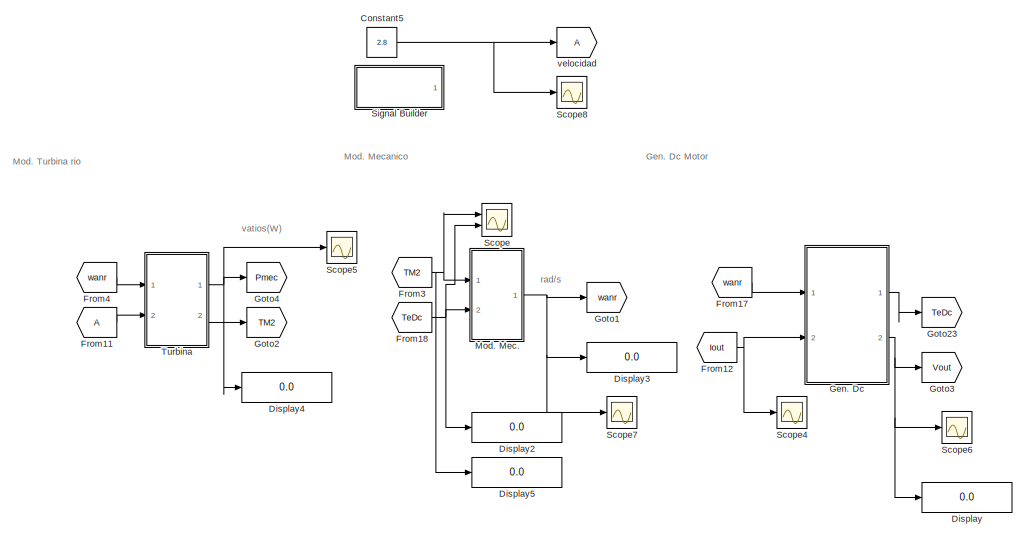
[diagram: root canvas - part 1/2, left side, full height]
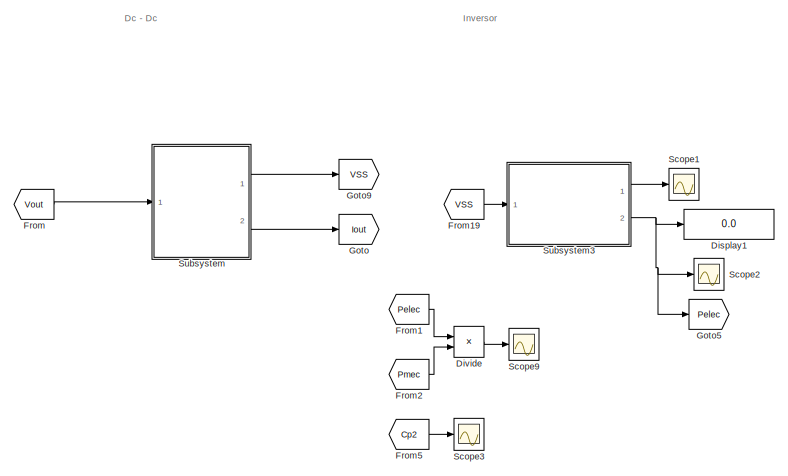
[diagram: root canvas - part 2/2, right side, full height]
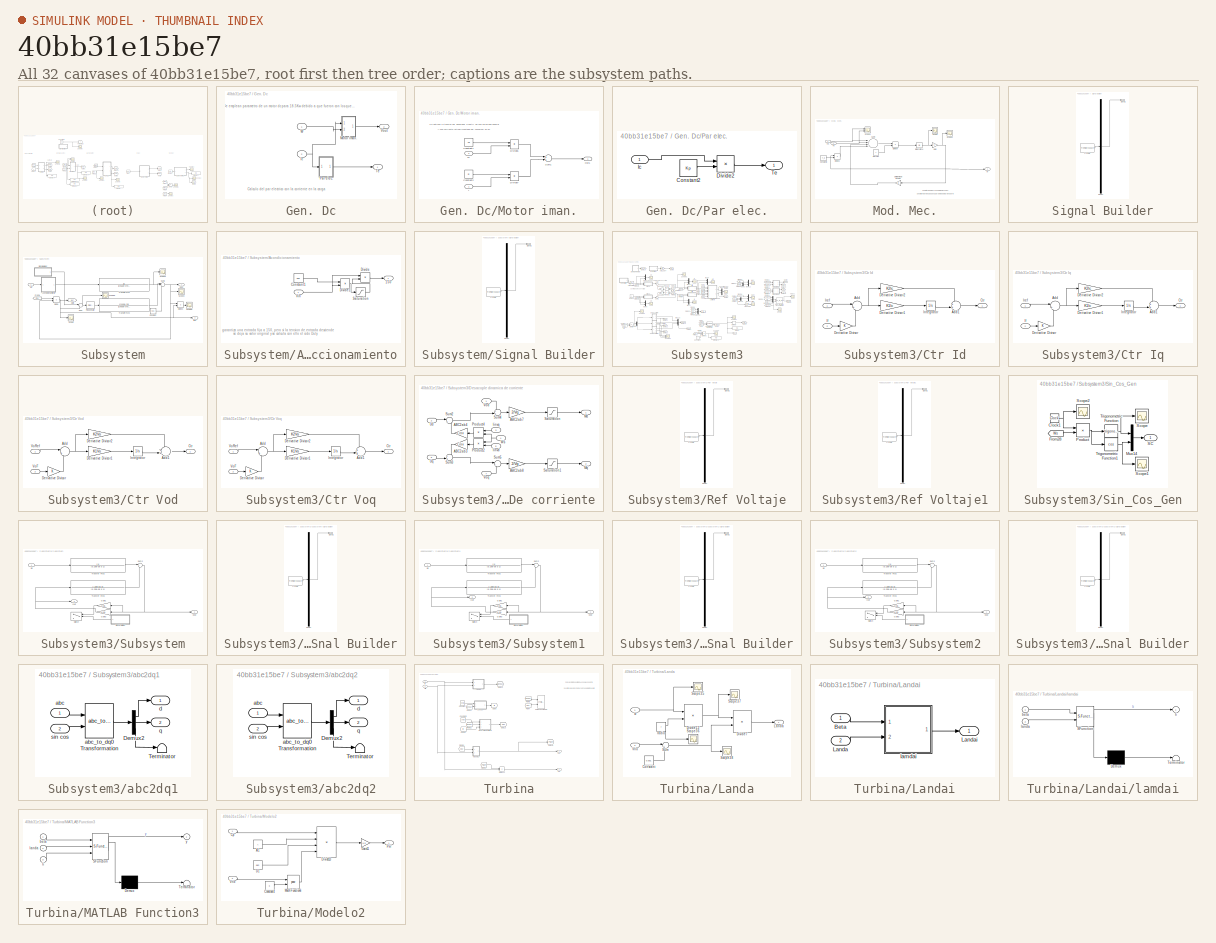
[diagram: thumbnail index - all 32 canvases of the model, root first then tree order]
MODEL slx_40bb31e15be7
KIND model
CONFIG AbsTol = 1e-3
CONFIG EnableMultiTasking = off
CONFIG FixedStep = Ts
CONFIG MaxStep = 1e-6
CONFIG MinStep = 1e-7
CONFIG RelTol = 1e-4
CONFIG SampleTimeConstraint = Unconstrained
CONFIG Solver = ode1
CONFIG SolverName = ode1
CONFIG StartTime = 0.0
CONFIG StopTime = 1
BLOCK [Constant] Constant5
  Value = 2.8
BLOCK [Display] Display
  Decimation = 1
  Ports = [1]
BLOCK [Display] Display1
  Decimation = 1
  Ports = [1]
BLOCK [Display] Display2
  Decimation = 1
  Ports = [1]
BLOCK [Display] Display3
  Decimation = 1
  Ports = [1]
BLOCK [Display] Display4
  Decimation = 1
  Ports = [1]
BLOCK [Display] Display5
  Decimation = 1
  Ports = [1]
BLOCK [Product] Divide
  InputSameDT = off
  Inputs = */
  OutDataTypeStr = Inherit: Inherit via internal rule
  Ports = [2, 1]
  RndMeth = Floor
  SaturateOnIntegerOverflow = off
BLOCK [From] From
  GotoTag = Vout
BLOCK [From] From1
  GotoTag = Pelec
BLOCK [From] From11
BLOCK [From] From12
  GotoTag = Iout
BLOCK [From] From17
  GotoTag = wanr
BLOCK [From] From18
  GotoTag = TeDc
BLOCK [From] From19
  GotoTag = VSS
BLOCK [From] From2
  GotoTag = Pmec
BLOCK [From] From3
  GotoTag = TM2
BLOCK [From] From4
  GotoTag = wanr
BLOCK [From] From5
  GotoTag = Cp2
  TagVisibility = global
BLOCK [SubSystem] Gen. Dc
  Ports = [2, 2]
  RequestExecContextInheritance = off
  Variant = off
BLOCK [Inport] Gen. Dc/Ic
  IconDisplay = Port number
  Port = 2
BLOCK [SubSystem] Gen. Dc/Motor iman.
  Ports = [2, 1]
  RequestExecContextInheritance = off
  Variant = off
BLOCK [Constant] Gen. Dc/Motor iman./Constant1
  Value = Kb
BLOCK [Constant] Gen. Dc/Motor iman./Constant2
  Value = Ri
BLOCK [Product] Gen. Dc/Motor iman./Divide6
  InputSameDT = off
  Inputs = **
  OutDataTypeStr = Inherit: Inherit via internal rule
  Ports = [2, 1]
BLOCK [Product] Gen. Dc/Motor iman./Divide7
  InputSameDT = off
  Inputs = **
  OutDataTypeStr = Inherit: Inherit via internal rule
  Ports = [2, 1]
BLOCK [Inport] Gen. Dc/Motor iman./I
  IconDisplay = Port number
BLOCK [Outport] Gen. Dc/Motor iman./Out1
  IconDisplay = Port number
BLOCK [Sum] Gen. Dc/Motor iman./Sum1
  InputSameDT = off
  OutDataTypeStr = Inherit: Inherit via internal rule
  Ports = [2, 1]
  SaturateOnIntegerOverflow = off
BLOCK [Inport] Gen. Dc/Motor iman./W
  IconDisplay = Port number
  Port = 2
BLOCK [SubSystem] Gen. Dc/Par elec.
  Ports = [1, 1]
  RequestExecContextInheritance = off
  Variant = off
BLOCK [Constant] Gen. Dc/Par elec./Constant2
  Value = Kp
BLOCK [Product] Gen. Dc/Par elec./Divide2
  InputSameDT = off
  Inputs = **
  OutDataTypeStr = Inherit: Inherit via internal rule
  Ports = [2, 1]
  RndMeth = Floor
  SaturateOnIntegerOverflow = off
BLOCK [Inport] Gen. Dc/Par elec./Ic
  IconDisplay = Port number
BLOCK [Outport] Gen. Dc/Par elec./Te
  IconDisplay = Port number
BLOCK [Outport] Gen. Dc/Te
  IconDisplay = Port number
BLOCK [Outport] Gen. Dc/Vout
  IconDisplay = Port number
  Port = 2
BLOCK [Inport] Gen. Dc/W
  IconDisplay = Port number
BLOCK [Goto] Goto
  GotoTag = Iout
BLOCK [Goto] Goto1
  GotoTag = wanr
BLOCK [Goto] Goto2
  GotoTag = TM2
BLOCK [Goto] Goto23
  GotoTag = TeDc
BLOCK [Goto] Goto3
  GotoTag = Vout
BLOCK [Goto] Goto4
  GotoTag = Pmec
BLOCK [Goto] Goto5
  GotoTag = Pelec
BLOCK [Goto] Goto9
  GotoTag = VSS
BLOCK [SubSystem] Mod. Mec.
  Ports = [2, 1]
  RequestExecContextInheritance = off
  Variant = off
BLOCK [Constant] Mod. Mec./Constant3
  Value = T_d
BLOCK [Product] Mod. Mec./Divide2
  InputSameDT = off
  Inputs = **
  OutDataTypeStr = Inherit: Inherit via internal rule
  Ports = [2, 1]
  RndMeth = Floor
  SaturateOnIntegerOverflow = off
BLOCK [Product] Mod. Mec./Divide9
  InputSameDT = off
  Inputs = */
  OutDataTypeStr = Inherit: Inherit via internal rule
  Ports = [2, 1]
  RndMeth = Floor
  SaturateOnIntegerOverflow = off
BLOCK [Gain] Mod. Mec./Gain
  OutDataTypeStr = Inherit: Inherit via internal rule
  ParamDataTypeStr = Inherit: Inherit via internal rule
  SaturateOnIntegerOverflow = off
BLOCK [Integrator] Mod. Mec./Integrator6
  InitialCondition = 10
  Ports = [1, 1]
BLOCK [Gain] Mod. Mec./Oeficiente de friccion
  Gain = B
  OutDataTypeStr = Inherit: Inherit via internal rule
  ParamDataTypeStr = Inherit: Inherit via internal rule
  SaturateOnIntegerOverflow = off
BLOCK [Scope] Mod. Mec./Scope
  NumInputPorts = 1
  Ports = [1]
  ScopeSpecificationString = Simulink.scopes.TimeScopeBlockCfg('CurrentConfiguration', extmgr.ConfigurationSet(extmgr.Configuration('Core','General UI',true),extmgr.Configuration('Core','Source UI',true),extmgr.Configuration('Sources','WiredSimulink',true,'DataLoggingVariableName','ScopeData3'),extmgr.Configuration('Visuals','Time Domain',true,'SerializedDisplays',{struct('MinYLimReal','1.98121','MaxYLimReal','82.16908','YLab...<+1372ch>
BLOCK [Scope] Mod. Mec./Scope1
  NumInputPorts = 2
  Ports = [2]
  ScopeSpecificationString = Simulink.scopes.TimeScopeBlockCfg('CurrentConfiguration', extmgr.ConfigurationSet(extmgr.Configuration('Core','General UI',true),extmgr.Configuration('Core','Source UI',true),extmgr.Configuration('Sources','WiredSimulink',true,'DataLoggingVariableName','ScopeData4'),extmgr.Configuration('Visuals','Time Domain',true,'SerializedDisplays',{struct('MinYLimReal','-138.71339','MaxYLimReal','108.76885','...<+1453ch>
BLOCK [Scope] Mod. Mec./Scope2
  NumInputPorts = 1
  Ports = [1]
  ScopeSpecificationString = Simulink.scopes.TimeScopeBlockCfg('CurrentConfiguration', extmgr.ConfigurationSet(extmgr.Configuration('Core','General UI',true),extmgr.Configuration('Core','Source UI',true),extmgr.Configuration('Sources','WiredSimulink',true,'DataLoggingVariableName','ScopeData5'),extmgr.Configuration('Visuals','Time Domain',true,'SerializedDisplays',{struct('MinYLimReal','1.86862','MaxYLimReal','83.18242','YLab...<+1365ch>
BLOCK [Sum] Mod. Mec./Sum4
  InputSameDT = off
  Inputs = |+---
  OutDataTypeStr = Inherit: Inherit via internal rule
  Ports = [4, 1]
  SaturateOnIntegerOverflow = off
BLOCK [Inport] Mod. Mec./Te
  IconDisplay = Port number
  Port = 2
BLOCK [Inport] Mod. Mec./Tm
  IconDisplay = Port number
BLOCK [Outport] Mod. Mec./W
  IconDisplay = Port number
BLOCK [Constant] Mod. Mec./inercia J
  Value = J
BLOCK [Scope] Scope
  NumInputPorts = 2
  Ports = [2]
  ScopeSpecificationString = Simulink.scopes.TimeScopeBlockCfg('CurrentConfiguration', extmgr.ConfigurationSet(extmgr.Configuration('Core','General UI',true),extmgr.Configuration('Core','Source UI',true),extmgr.Configuration('Sources','WiredSimulink',true,'DataLoggingVariableName','ScopeData8'),extmgr.Configuration('Visuals','Time Domain',true,'SerializedDisplays',{struct('MinYLimReal','-197.46741','MaxYLimReal','132.546','YL...<+1390ch>
BLOCK [Scope] Scope1
  NumInputPorts = 1
  Ports = [1]
  ScopeSpecificationString = Simulink.scopes.TimeScopeBlockCfg('CurrentConfiguration', extmgr.ConfigurationSet(extmgr.Configuration('Core','General UI',true),extmgr.Configuration('Core','Source UI',true),extmgr.Configuration('Sources','WiredSimulink',true,'DataLoggingVariableName','ScopeData12'),extmgr.Configuration('Visuals','Time Domain',true,'SerializedDisplays',{struct('MinYLimReal','-273.97928','MaxYLimReal','274.02283',...<+1466ch>
BLOCK [Scope] Scope2
  NumInputPorts = 1
  Ports = [1]
  ScopeSpecificationString = Simulink.scopes.TimeScopeBlockCfg('CurrentConfiguration', extmgr.ConfigurationSet(extmgr.Configuration('Core','General UI',true,'FigureColor',[1 1 1]),extmgr.Configuration('Core','Source UI',true),extmgr.Configuration('Sources','WiredSimulink',true,'DataLoggingVariableName','ScopeData1','DataLoggingSaveFormat','StructureWithTime','DataLoggingDecimation','1','DataLoggingDecimateData',true),extmgr.C...<+2785ch>
BLOCK [Scope] Scope3
  NumInputPorts = 1
  Ports = [1]
  ScopeSpecificationString = Simulink.scopes.TimeScopeBlockCfg('CurrentConfiguration', extmgr.ConfigurationSet(extmgr.Configuration('Core','General UI',true,'FigureColor',[1 1 1]),extmgr.Configuration('Core','Source UI',true),extmgr.Configuration('Sources','WiredSimulink',true,'DataLoggingVariableName','ScopeData2','DataLoggingSaveFormat','StructureWithTime','DataLoggingDecimation','1','DataLoggingDecimateData',true),extmgr.C...<+2762ch>
BLOCK [Scope] Scope4
  NumInputPorts = 1
  Ports = [1]
  ScopeSpecificationString = Simulink.scopes.TimeScopeBlockCfg('CurrentConfiguration', extmgr.ConfigurationSet(extmgr.Configuration('Core','General UI',true),extmgr.Configuration('Core','Source UI',true),extmgr.Configuration('Sources','WiredSimulink',true,'DataLoggingVariableName','ScopeData1'),extmgr.Configuration('Visuals','Time Domain',true,'SerializedDisplays',{struct('MinYLimReal','-0.52904','MaxYLimReal','3.07102','YLab...<+1412ch>
BLOCK [Scope] Scope5
  NumInputPorts = 1
  Ports = [1]
  ScopeSpecificationString = Simulink.scopes.TimeScopeBlockCfg('CurrentConfiguration', extmgr.ConfigurationSet(extmgr.Configuration('Core','General UI',true,'FigureColor',[1 1 1]),extmgr.Configuration('Core','Source UI',true),extmgr.Configuration('Sources','WiredSimulink',true,'DataLoggingVariableName','ScopeData14','DataLoggingSaveFormat','StructureWithTime','DataLoggingDecimation','1','DataLoggingDecimateData',true),extmgr....<+2787ch>
BLOCK [Scope] Scope6
  NumInputPorts = 1
  Ports = [1]
  ScopeSpecificationString = Simulink.scopes.TimeScopeBlockCfg('CurrentConfiguration', extmgr.ConfigurationSet(extmgr.Configuration('Core','General UI',true,'FigureColor',[0.156862745098039 0.156862745098039 0.156862745098039]),extmgr.Configuration('Core','Source UI',true),extmgr.Configuration('Sources','WiredSimulink',true,'DataLoggingVariableName','ScopeData16','DataLoggingSaveFormat','StructureWithTime','DataLoggingDecimat...<+2815ch>
BLOCK [Scope] Scope7
  NumInputPorts = 1
  Ports = [1]
  ScopeSpecificationString = Simulink.scopes.TimeScopeBlockCfg('CurrentConfiguration', extmgr.ConfigurationSet(extmgr.Configuration('Core','General UI',true,'FigureColor',[1 1 1]),extmgr.Configuration('Core','Source UI',true),extmgr.Configuration('Sources','WiredSimulink',true,'DataLoggingVariableName','ScopeData7','DataLoggingSaveFormat','StructureWithTime','DataLoggingDecimation','1','DataLoggingDecimateData',true),extmgr.C...<+2770ch>
BLOCK [Scope] Scope8
  NumInputPorts = 1
  Ports = [1]
  ScopeSpecificationString = Simulink.scopes.TimeScopeBlockCfg('CurrentConfiguration', extmgr.ConfigurationSet(extmgr.Configuration('Core','General UI',true,'FigureColor',[1 1 1]),extmgr.Configuration('Core','Source UI',true),extmgr.Configuration('Sources','WiredSimulink',true,'DataLoggingVariableName','ScopeData18','DataLoggingSaveFormat','StructureWithTime','DataLoggingDecimation','1','DataLoggingDecimateData',true),extmgr....<+2586ch>
BLOCK [Scope] Scope9
  NumInputPorts = 1
  Ports = [1]
  ScopeSpecificationString = Simulink.scopes.TimeScopeBlockCfg('CurrentConfiguration', extmgr.ConfigurationSet(extmgr.Configuration('Core','General UI',true,'FigureColor',[1 1 1]),extmgr.Configuration('Core','Source UI',true),extmgr.Configuration('Sources','WiredSimulink',true,'DataLoggingVariableName','ScopeData6','DataLoggingSaveFormat','StructureWithTime','DataLoggingDecimation','1','DataLoggingDecimateData',true),extmgr.C...<+2765ch>
BLOCK [SubSystem] Signal Builder
  ClipboardFcn = sigbuilder_block('clipboard');
  CloseFcn = sigbuilder_block('close');
  ContinueFcn = sigbuilder_block('continue');
  CopyFcn = sigbuilder_block('copy');
  DeleteFcn = sigbuilder_block('delete');
  LoadFcn = sigbuilder_block('load');
  MaskHideContents = on
  ModelCloseFcn = sigbuilder_block('modelClose');
  NameChangeFcn = sigbuilder_block('namechange');
  OpenFcn = sigbuilder_block('open',[437.25 153 550.5 359.25 ]);
  PauseFcn = sigbuilder_block('pause');
  Ports = [0, 1]
  PreSaveFcn = sigbuilder_block('preSave');
  RequestExecContextInheritance = off
  StartFcn = sigbuilder_block('start');
  StopFcn = sigbuilder_block('stop');
  Tag = STV Subsys
  Variant = off
BLOCK [Demux] Signal Builder/Demux
  Outputs = 1
  Ports = [1, 1]
  Tag = STV Demux
BLOCK [FromWorkspace] Signal Builder/FromWs
  SampleTime = 0
  Tag = STV FromWs
  VariableName = tuvar
  ZeroCross = on
BLOCK [Outport] Signal Builder/Signal 1
  IconDisplay = Port number
  Tag = STV Outport
BLOCK [SubSystem] Subsystem
  Ports = [1, 2]
  RequestExecContextInheritance = off
  Variant = off
BLOCK [SubSystem] Subsystem/Acondicionamiento
  Ports = [1, 1]
  RequestExecContextInheritance = off
  Variant = off
BLOCK [Outport] Subsystem/Acondicionamiento/150
  IconDisplay = Port number
BLOCK [Constant] Subsystem/Acondicionamiento/Constant1
  Value = 300
BLOCK [Product] Subsystem/Acondicionamiento/Divide
  InputSameDT = off
  Inputs = **
  OutDataTypeStr = Inherit: Inherit via internal rule
  Ports = [2, 1]
  RndMeth = Floor
  SaturateOnIntegerOverflow = off
BLOCK [Product] Subsystem/Acondicionamiento/Divide1
  InputSameDT = off
  Inputs = */
  OutDataTypeStr = Inherit: Inherit via internal rule
  Ports = [2, 1]
  RndMeth = Floor
  SaturateOnIntegerOverflow = off
BLOCK [Saturate] Subsystem/Acondicionamiento/Saturation
  InputPortMap = u0
  LowerLimit = 0
  Ports = [1, 1]
  UpperLimit = 1
BLOCK [Inport] Subsystem/Acondicionamiento/Vin
  IconDisplay = Port number
BLOCK [Constant] Subsystem/Constant
  Value = 0.01
BLOCK [Product] Subsystem/Divide
  InputSameDT = off
  Inputs = */
  OutDataTypeStr = Inherit: Inherit via internal rule
  Ports = [2, 1]
  RndMeth = Floor
  SaturateOnIntegerOverflow = off
BLOCK [Product] Subsystem/Divide3
  InputSameDT = off
  Inputs = **
  OutDataTypeStr = Inherit: Inherit via internal rule
  Ports = [2, 1]
  RndMeth = Floor
  SaturateOnIntegerOverflow = off
BLOCK [From] Subsystem/From4
  GotoTag = Pinv
  TagVisibility = global
BLOCK [Goto] Subsystem/Goto
  GotoTag = Iout
BLOCK [Outport] Subsystem/Iout
  IconDisplay = Port number
  Port = 2
BLOCK [Reference] Subsystem/PID Controller  REF=simulink/Continuous/PID Controller
  Ports = [1, 1]
  SourceBlock = simulink/Continuous/PID Controller
  SourceProductBaseCode = SL
  SourceProductName = Simulink
  SourceType = PID 1dof
BLOCK [Scope] Subsystem/Scope
  NumInputPorts = 1
  Ports = [1]
  ScopeSpecificationString = Simulink.scopes.TimeScopeBlockCfg('CurrentConfiguration', extmgr.ConfigurationSet(extmgr.Configuration('Core','General UI',true),extmgr.Configuration('Core','Source UI',true),extmgr.Configuration('Sources','WiredSimulink',true,'DataLoggingVariableName','ScopeData20'),extmgr.Configuration('Visuals','Time Domain',true,'SerializedDisplays',{struct('MinYLimReal','-17.13859','MaxYLimReal','13.66506','Y...<+1416ch>
BLOCK [Scope] Subsystem/Scope2
  NumInputPorts = 1
  Ports = [1]
  ScopeSpecificationString = Simulink.scopes.TimeScopeBlockCfg('CurrentConfiguration', extmgr.ConfigurationSet(extmgr.Configuration('Core','General UI',true),extmgr.Configuration('Core','Source UI',true),extmgr.Configuration('Sources','WiredSimulink',true,'DataLoggingVariableName','ScopeData2'),extmgr.Configuration('Visuals','Time Domain',true,'SerializedDisplays',{struct('MinYLimReal','-203.25569','MaxYLimReal','848.18834','...<+1421ch>
BLOCK [Scope] Subsystem/Scope3
  NumInputPorts = 1
  Ports = [1]
  ScopeSpecificationString = Simulink.scopes.TimeScopeBlockCfg('CurrentConfiguration', extmgr.ConfigurationSet(extmgr.Configuration('Core','General UI',true),extmgr.Configuration('Core','Source UI',true),extmgr.Configuration('Sources','WiredSimulink',true,'DataLoggingVariableName','ScopeData3'),extmgr.Configuration('Visuals','Time Domain',true,'SerializedDisplays',{struct('MinYLimReal','-46901.06925','MaxYLimReal','47218.8729...<+1402ch>
BLOCK [Scope] Subsystem/Scope5
  NumInputPorts = 1
  Ports = [1]
  ScopeSpecificationString = Simulink.scopes.TimeScopeBlockCfg('CurrentConfiguration', extmgr.ConfigurationSet(extmgr.Configuration('Core','General UI',true),extmgr.Configuration('Core','Source UI',true),extmgr.Configuration('Sources','WiredSimulink',true,'DataLoggingVariableName','ScopeData3'),extmgr.Configuration('Visuals','Time Domain',true,'SerializedDisplays',{struct('MinYLimReal','-169.56698','MaxYLimReal','1526.10279',...<+1428ch>
BLOCK [Scope] Subsystem/Scope6
  NumInputPorts = 1
  Ports = [1]
  ScopeSpecificationString = Simulink.scopes.TimeScopeBlockCfg('CurrentConfiguration', extmgr.ConfigurationSet(extmgr.Configuration('Core','General UI',true),extmgr.Configuration('Core','Source UI',true),extmgr.Configuration('Sources','WiredSimulink',true,'DataLoggingVariableName','ScopeData4'),extmgr.Configuration('Visuals','Time Domain',true,'SerializedDisplays',{struct('MinYLimReal','51.00000','MaxYLimReal','161.00000','YL...<+1386ch>
BLOCK [SubSystem] Subsystem/Signal Builder
  ClipboardFcn = sigbuilder_block('clipboard');
  CloseFcn = sigbuilder_block('close');
  ContinueFcn = sigbuilder_block('continue');
  CopyFcn = sigbuilder_block('copy');
  DeleteFcn = sigbuilder_block('delete');
  LoadFcn = sigbuilder_block('load');
  MaskHideContents = on
  ModelCloseFcn = sigbuilder_block('modelClose');
  NameChangeFcn = sigbuilder_block('namechange');
  OpenFcn = sigbuilder_block('open',[437.25 153 550.5 359.25 ]);
  PauseFcn = sigbuilder_block('pause');
  Ports = [0, 1]
  PreSaveFcn = sigbuilder_block('preSave');
  RequestExecContextInheritance = off
  StartFcn = sigbuilder_block('start');
  StopFcn = sigbuilder_block('stop');
  Tag = STV Subsys
  Variant = off
BLOCK [Demux] Subsystem/Signal Builder/Demux
  Outputs = 1
  Ports = [1, 1]
  Tag = STV Demux
BLOCK [FromWorkspace] Subsystem/Signal Builder/FromWs
  SampleTime = 0
  Tag = STV FromWs
  VariableName = tuvar
  ZeroCross = on
BLOCK [Outport] Subsystem/Signal Builder/Signal 1
  IconDisplay = Port number
  Tag = STV Outport
BLOCK [Sum] Subsystem/Sum
  IconShape = round
  InputSameDT = off
  Inputs = |+-
  OutDataTypeStr = Inherit: Inherit via internal rule
  Ports = [2, 1]
  SaturateOnIntegerOverflow = off
BLOCK [Sum] Subsystem/Sum2
  IconShape = round
  InputSameDT = off
  Inputs = |+++
  OutDataTypeStr = Inherit: Inherit via internal rule
  Ports = [3, 1]
  SaturateOnIntegerOverflow = off
BLOCK [TransferFcn] Subsystem/Transfer Fcn2
  Denominator = [1.7568e-07 0 1]
BLOCK [TransferFcn] Subsystem/Transfer Fcn3
  Denominator = [1.7568e-07 0 1]
  Numerator = [-2.109e-3 0]
BLOCK [Inport] Subsystem/Vin
  IconDisplay = Port number
BLOCK [Outport] Subsystem/Vout
  IconDisplay = Port number
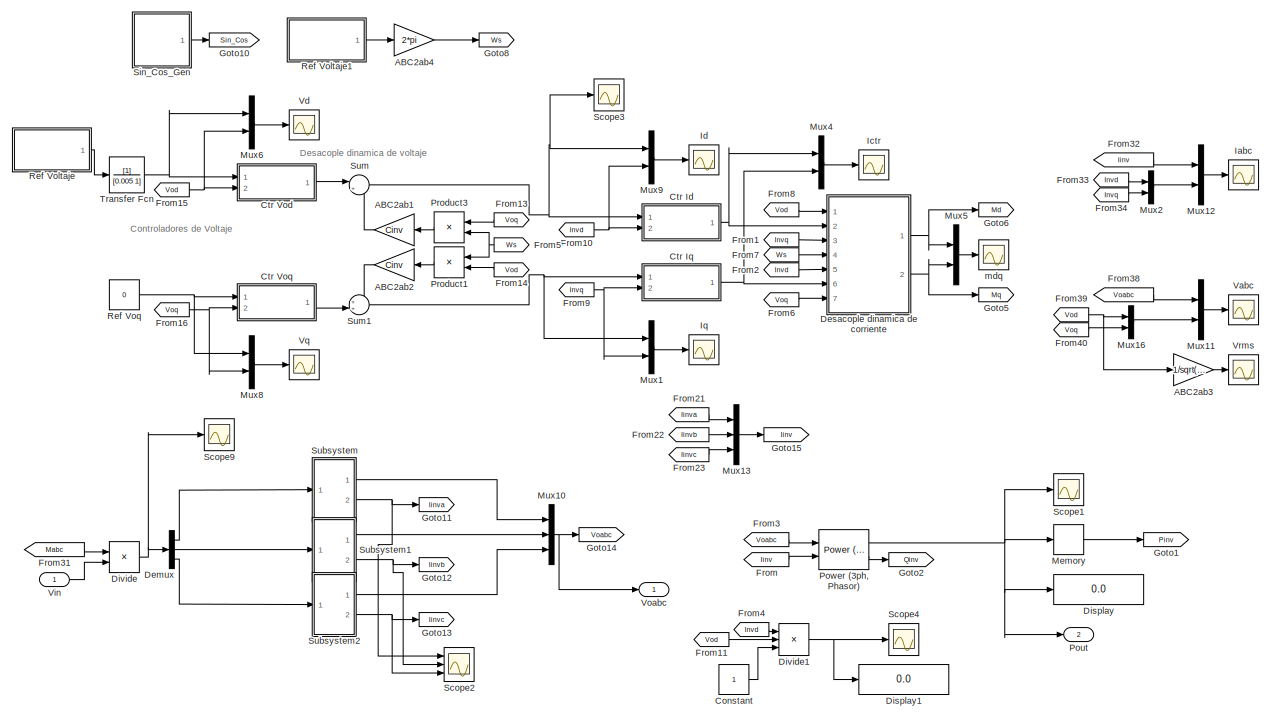
[diagram: Subsystem3 - part 1/2, most of the canvas]
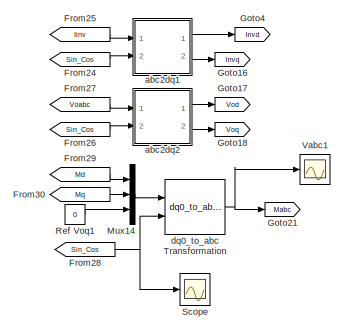
[diagram: Subsystem3 - part 2/2, middle right region]
BLOCK [SubSystem] Subsystem3
  Ports = [1, 2]
  RequestExecContextInheritance = off
  Variant = off
BLOCK [Gain] Subsystem3/ABC2ab1
  Gain = Cinv
BLOCK [Gain] Subsystem3/ABC2ab2
  Gain = Cinv
BLOCK [Gain] Subsystem3/ABC2ab3
  Gain = 1/sqrt(2)
BLOCK [Gain] Subsystem3/ABC2ab4
  Gain = 2*pi
BLOCK [Constant] Subsystem3/Constant
BLOCK [SubSystem] Subsystem3/Ctr Id
  Ports = [2, 1]
  RequestExecContextInheritance = off
  Variant = off
BLOCK [Sum] Subsystem3/Ctr Id/Add
  IconShape = round
  InputSameDT = off
  Inputs = |+-
  OutDataTypeStr = Inherit: Inherit via internal rule
  Ports = [2, 1]
  SaturateOnIntegerOverflow = off
BLOCK [Sum] Subsystem3/Ctr Id/Add1
  IconShape = round
  InputSameDT = off
  Inputs = ++|
  OutDataTypeStr = Inherit: Inherit via internal rule
  Ports = [2, 1]
  SaturateOnIntegerOverflow = off
BLOCK [Outport] Subsystem3/Ctr Id/Ctr
  IconDisplay = Port number
BLOCK [Gain] Subsystem3/Ctr Id/Derivative Divisor
BLOCK [Gain] Subsystem3/Ctr Id/Derivative Divisor1
  Gain = K1Ic
BLOCK [Gain] Subsystem3/Ctr Id/Derivative Divisor2
  Gain = K2Ic
BLOCK [Inport] Subsystem3/Ctr Id/If
  IconDisplay = Port number
  Port = 2
BLOCK [Integrator] Subsystem3/Ctr Id/Integrator
  Ports = [1, 1]
BLOCK [Inport] Subsystem3/Ctr Id/Iref
  IconDisplay = Port number
BLOCK [SubSystem] Subsystem3/Ctr Iq
  Ports = [2, 1]
  RequestExecContextInheritance = off
  Variant = off
BLOCK [Sum] Subsystem3/Ctr Iq/Add
  IconShape = round
  InputSameDT = off
  Inputs = |+-
  OutDataTypeStr = Inherit: Inherit via internal rule
  Ports = [2, 1]
  SaturateOnIntegerOverflow = off
BLOCK [Sum] Subsystem3/Ctr Iq/Add1
  IconShape = round
  InputSameDT = off
  Inputs = ++|
  OutDataTypeStr = Inherit: Inherit via internal rule
  Ports = [2, 1]
  SaturateOnIntegerOverflow = off
BLOCK [Outport] Subsystem3/Ctr Iq/Ctr
  IconDisplay = Port number
BLOCK [Gain] Subsystem3/Ctr Iq/Derivative Divisor
BLOCK [Gain] Subsystem3/Ctr Iq/Derivative Divisor1
  Gain = K1Ic
BLOCK [Gain] Subsystem3/Ctr Iq/Derivative Divisor2
  Gain = K2Ic
BLOCK [Inport] Subsystem3/Ctr Iq/If
  IconDisplay = Port number
  Port = 2
BLOCK [Integrator] Subsystem3/Ctr Iq/Integrator
  Ports = [1, 1]
BLOCK [Inport] Subsystem3/Ctr Iq/Iref
  IconDisplay = Port number
BLOCK [SubSystem] Subsystem3/Ctr Vod
  Ports = [2, 1]
  RequestExecContextInheritance = off
  Variant = off
BLOCK [Sum] Subsystem3/Ctr Vod/Add
  IconShape = round
  InputSameDT = off
  Inputs = |+-
  OutDataTypeStr = Inherit: Inherit via internal rule
  Ports = [2, 1]
  SaturateOnIntegerOverflow = off
BLOCK [Sum] Subsystem3/Ctr Vod/Add1
  IconShape = round
  InputSameDT = off
  Inputs = ++|
  OutDataTypeStr = Inherit: Inherit via internal rule
  Ports = [2, 1]
  SaturateOnIntegerOverflow = off
BLOCK [Outport] Subsystem3/Ctr Vod/Ctr
  IconDisplay = Port number
BLOCK [Gain] Subsystem3/Ctr Vod/Derivative Divisor
BLOCK [Gain] Subsystem3/Ctr Vod/Derivative Divisor1
  Gain = K1Vo
BLOCK [Gain] Subsystem3/Ctr Vod/Derivative Divisor2
  Gain = K2Vo
BLOCK [Integrator] Subsystem3/Ctr Vod/Integrator
  Ports = [1, 1]
BLOCK [Inport] Subsystem3/Ctr Vod/VoF
  IconDisplay = Port number
  Port = 2
BLOCK [Inport] Subsystem3/Ctr Vod/VoRef
  IconDisplay = Port number
BLOCK [SubSystem] Subsystem3/Ctr Voq
  Ports = [2, 1]
  RequestExecContextInheritance = off
  Variant = off
BLOCK [Sum] Subsystem3/Ctr Voq/Add
  IconShape = round
  InputSameDT = off
  Inputs = |+-
  OutDataTypeStr = Inherit: Inherit via internal rule
  Ports = [2, 1]
  SaturateOnIntegerOverflow = off
BLOCK [Sum] Subsystem3/Ctr Voq/Add1
  IconShape = round
  InputSameDT = off
  Inputs = ++|
  OutDataTypeStr = Inherit: Inherit via internal rule
  Ports = [2, 1]
  SaturateOnIntegerOverflow = off
BLOCK [Outport] Subsystem3/Ctr Voq/Ctr
  IconDisplay = Port number
BLOCK [Gain] Subsystem3/Ctr Voq/Derivative Divisor
BLOCK [Gain] Subsystem3/Ctr Voq/Derivative Divisor1
  Gain = K1Vo
BLOCK [Gain] Subsystem3/Ctr Voq/Derivative Divisor2
  Gain = K2Vo
BLOCK [Integrator] Subsystem3/Ctr Voq/Integrator
  Ports = [1, 1]
BLOCK [Inport] Subsystem3/Ctr Voq/VoF
  IconDisplay = Port number
  Port = 2
BLOCK [Inport] Subsystem3/Ctr Voq/VoRef
  IconDisplay = Port number
BLOCK [Demux] Subsystem3/Demux
  DisplayOption = bar
  Outputs = 3
  Ports = [1, 3]
BLOCK [SubSystem] Subsystem3/Desacople dinamica de corriente
  Ports = [7, 2]
  RequestExecContextInheritance = off
  Variant = off
BLOCK [Gain] Subsystem3/Desacople dinamica de corriente/ABC2ab3
  Gain = Linv
BLOCK [Gain] Subsystem3/Desacople dinamica de corriente/ABC2ab4
  Gain = Linv
BLOCK [Gain] Subsystem3/Desacople dinamica de corriente/ABC2ab7
  Gain = 2/Vg
BLOCK [Gain] Subsystem3/Desacople dinamica de corriente/ABC2ab8
  Gain = 2/Vg
BLOCK [Inport] Subsystem3/Desacople dinamica de corriente/Iinvd
  IconDisplay = Port number
  Port = 5
BLOCK [Inport] Subsystem3/Desacople dinamica de corriente/Iinvq
  IconDisplay = Port number
  Port = 3
BLOCK [Outport] Subsystem3/Desacople dinamica de corriente/Md
  IconDisplay = Port number
BLOCK [Outport] Subsystem3/Desacople dinamica de corriente/Mq
  IconDisplay = Port number
  Port = 2
BLOCK [Product] Subsystem3/Desacople dinamica de corriente/Product2
  InputSameDT = off
  OutDataTypeStr = double
  Ports = [2, 1]
  SaturateOnIntegerOverflow = off
BLOCK [Product] Subsystem3/Desacople dinamica de corriente/Product4
  InputSameDT = off
  OutDataTypeStr = double
  Ports = [2, 1]
  SaturateOnIntegerOverflow = off
BLOCK [Saturate] Subsystem3/Desacople dinamica de corriente/Saturation
  InputPortMap = u0
  LowerLimit = -1
  Ports = [1, 1]
  UpperLimit = 1
BLOCK [Saturate] Subsystem3/Desacople dinamica de corriente/Saturation1
  InputPortMap = u0
  LowerLimit = -1
  Ports = [1, 1]
  UpperLimit = 1
BLOCK [Sum] Subsystem3/Desacople dinamica de corriente/Sum2
  IconShape = round
  InputSameDT = off
  Inputs = |+-
  OutDataTypeStr = Inherit: Inherit via internal rule
  Ports = [2, 1]
  SaturateOnIntegerOverflow = off
BLOCK [Sum] Subsystem3/Desacople dinamica de corriente/Sum3
  IconShape = round
  InputSameDT = off
  Inputs = ++|
  OutDataTypeStr = Inherit: Inherit via internal rule
  Ports = [2, 1]
  SaturateOnIntegerOverflow = off
BLOCK [Sum] Subsystem3/Desacople dinamica de corriente/Sum4
  IconShape = round
  InputSameDT = off
  Inputs = ++|
  OutDataTypeStr = Inherit: Inherit via internal rule
  Ports = [2, 1]
  SaturateOnIntegerOverflow = off
BLOCK [Sum] Subsystem3/Desacople dinamica de corriente/Sum5
  IconShape = round
  InputSameDT = off
  Inputs = |++
  OutDataTypeStr = Inherit: Inherit via internal rule
  Ports = [2, 1]
  SaturateOnIntegerOverflow = off
BLOCK [Inport] Subsystem3/Desacople dinamica de corriente/Ud
  IconDisplay = Port number
  Port = 2
BLOCK [Inport] Subsystem3/Desacople dinamica de corriente/Uq
  IconDisplay = Port number
  Port = 6
BLOCK [Inport] Subsystem3/Desacople dinamica de corriente/Vod
  IconDisplay = Port number
BLOCK [Inport] Subsystem3/Desacople dinamica de corriente/Voq
  IconDisplay = Port number
  Port = 7
BLOCK [Inport] Subsystem3/Desacople dinamica de corriente/Ws
  IconDisplay = Port number
  Port = 4
BLOCK [Display] Subsystem3/Display
  Decimation = 1
  Ports = [1]
BLOCK [Display] Subsystem3/Display1
  Decimation = 1
  Ports = [1]
BLOCK [Product] Subsystem3/Divide
  InputSameDT = off
  Inputs = **
  OutDataTypeStr = Inherit: Inherit via internal rule
  Ports = [2, 1]
  RndMeth = Floor
  SaturateOnIntegerOverflow = off
BLOCK [Product] Subsystem3/Divide1
  InputSameDT = off
  Inputs = ***
  OutDataTypeStr = Inherit: Inherit via internal rule
  Ports = [3, 1]
  RndMeth = Floor
  SaturateOnIntegerOverflow = off
BLOCK [From] Subsystem3/From
  GotoTag = Iinv
BLOCK [From] Subsystem3/From1
  CloseFcn = tagdialog Close
  GotoTag = Invq
BLOCK [From] Subsystem3/From10
  CloseFcn = tagdialog Close
  GotoTag = Invd
BLOCK [From] Subsystem3/From11
  GotoTag = Vod
BLOCK [From] Subsystem3/From13
  CloseFcn = tagdialog Close
  GotoTag = Voq
BLOCK [From] Subsystem3/From14
  CloseFcn = tagdialog Close
  GotoTag = Vod
BLOCK [From] Subsystem3/From15
  CloseFcn = tagdialog Close
  GotoTag = Vod
BLOCK [From] Subsystem3/From16
  CloseFcn = tagdialog Close
  GotoTag = Voq
BLOCK [From] Subsystem3/From2
  CloseFcn = tagdialog Close
  GotoTag = Invd
BLOCK [From] Subsystem3/From21
  CloseFcn = tagdialog Close
  GotoTag = Iinva
BLOCK [From] Subsystem3/From22
  CloseFcn = tagdialog Close
  GotoTag = Iinvb
BLOCK [From] Subsystem3/From23
  CloseFcn = tagdialog Close
  GotoTag = Iinvc
BLOCK [From] Subsystem3/From24
  CloseFcn = tagdialog Close
  GotoTag = Sin_Cos
BLOCK [From] Subsystem3/From25
  CloseFcn = tagdialog Close
  GotoTag = Iinv
BLOCK [From] Subsystem3/From26
  CloseFcn = tagdialog Close
  GotoTag = Sin_Cos
BLOCK [From] Subsystem3/From27
  CloseFcn = tagdialog Close
  GotoTag = Voabc
BLOCK [From] Subsystem3/From28
  CloseFcn = tagdialog Close
  GotoTag = Sin_Cos
BLOCK [From] Subsystem3/From29
  CloseFcn = tagdialog Close
  GotoTag = Md
BLOCK [From] Subsystem3/From3
  GotoTag = Voabc
BLOCK [From] Subsystem3/From30
  CloseFcn = tagdialog Close
  GotoTag = Mq
BLOCK [From] Subsystem3/From31
  CloseFcn = tagdialog Close
  GotoTag = Mabc
BLOCK [From] Subsystem3/From32
  CloseFcn = tagdialog Close
  GotoTag = Iinv
BLOCK [From] Subsystem3/From33
  CloseFcn = tagdialog Close
  GotoTag = Invd
BLOCK [From] Subsystem3/From34
  CloseFcn = tagdialog Close
  GotoTag = Invq
BLOCK [From] Subsystem3/From38
  CloseFcn = tagdialog Close
  GotoTag = Voabc
BLOCK [From] Subsystem3/From39
  CloseFcn = tagdialog Close
  GotoTag = Vod
BLOCK [From] Subsystem3/From4
  GotoTag = Invd
BLOCK [From] Subsystem3/From40
  CloseFcn = tagdialog Close
  GotoTag = Voq
BLOCK [From] Subsystem3/From5
  CloseFcn = tagdialog Close
  GotoTag = Ws
  TagVisibility = global
BLOCK [From] Subsystem3/From6
  CloseFcn = tagdialog Close
  GotoTag = Voq
BLOCK [From] Subsystem3/From7
  CloseFcn = tagdialog Close
  GotoTag = Ws
  TagVisibility = global
BLOCK [From] Subsystem3/From8
  CloseFcn = tagdialog Close
  GotoTag = Vod
BLOCK [From] Subsystem3/From9
  CloseFcn = tagdialog Close
  GotoTag = Invq
BLOCK [Goto] Subsystem3/Goto1
  GotoTag = Pinv
  TagVisibility = global
BLOCK [Goto] Subsystem3/Goto10
  GotoTag = Sin_Cos
BLOCK [Goto] Subsystem3/Goto11
  GotoTag = Iinva
BLOCK [Goto] Subsystem3/Goto12
  GotoTag = Iinvb
BLOCK [Goto] Subsystem3/Goto13
  GotoTag = Iinvc
BLOCK [Goto] Subsystem3/Goto14
  GotoTag = Voabc
BLOCK [Goto] Subsystem3/Goto15
  GotoTag = Iinv
BLOCK [Goto] Subsystem3/Goto16
  GotoTag = Invq
BLOCK [Goto] Subsystem3/Goto17
  GotoTag = Vod
BLOCK [Goto] Subsystem3/Goto18
  GotoTag = Voq
BLOCK [Goto] Subsystem3/Goto2
  GotoTag = Qinv
BLOCK [Goto] Subsystem3/Goto21
  GotoTag = Mabc
BLOCK [Goto] Subsystem3/Goto4
  GotoTag = Invd
BLOCK [Goto] Subsystem3/Goto5
  GotoTag = Mq
BLOCK [Goto] Subsystem3/Goto6
  GotoTag = Md
BLOCK [Goto] Subsystem3/Goto8
  GotoTag = Ws
  TagVisibility = global
BLOCK [Scope] Subsystem3/Iabc
  NumInputPorts = 1
  Ports = [1]
  ScopeSpecificationString = Simulink.scopes.TimeScopeBlockCfg('CurrentConfiguration', extmgr.ConfigurationSet(extmgr.Configuration('Core','General UI',true),extmgr.Configuration('Core','Source UI',true),extmgr.Configuration('Sources','WiredSimulink',true,'DataLoggingVariableName','ScopeData6','DataLoggingSaveFormat','Structure'),extmgr.Configuration('Visuals','Time Domain',true,'SerializedDisplays',{struct('MinYLimReal','-14...<+1721ch>
BLOCK [Scope] Subsystem3/Ictr
  NumInputPorts = 1
  Ports = [1]
  ScopeSpecificationString = C++SS(StrPVP('Location','[11, 60, 654, 739]'),StrPVP('Open','off'),StrPVP('ZoomMode','xonly'),MxPVP('AxesTitles',53,'struct(''axes1'',''ir (A)'')'),MxPVP('ScopeGraphics',56,'struct(''FigureColor'',''[0.5 0.5 0.5]'',''AxesColor'',''[0 0 0]'',''AxesTickColor'',''[1 1 1]'',''LineColors'',''[1 1 0;1 0 1;0 1 1;1 0 0;0 1 0;0 0 1]'',''LineStyles'',''-|-|-|-|-|-'',''LineWidths'',''[0.5 0.5 0.5 0.5 0.5 0.5...<+323ch>
BLOCK [Scope] Subsystem3/Id
  NumInputPorts = 1
  Ports = [1]
  ScopeSpecificationString = Simulink.scopes.TimeScopeBlockCfg('CurrentConfiguration', extmgr.ConfigurationSet(extmgr.Configuration('Core','General UI',true),extmgr.Configuration('Core','Source UI',true),extmgr.Configuration('Sources','WiredSimulink',true,'DataLoggingVariableName','ScopeData10','DataLoggingSaveFormat','Structure','DataLoggingDecimation','D','DataLoggingDecimateData',true),extmgr.Configuration('Visuals','Time ...<+1731ch>
BLOCK [Scope] Subsystem3/Iq
  NumInputPorts = 1
  Ports = [1]
  ScopeSpecificationString = C++SS(StrPVP('Location','[10, 60, 1376, 739]'),StrPVP('Open','off'),StrPVP('ZoomMode','xonly'),MxPVP('AxesTitles',53,'struct(''axes1'',''ir (A)'')'),MxPVP('ScopeGraphics',56,'struct(''FigureColor'',''[0.5 0.5 0.5]'',''AxesColor'',''[0 0 0]'',''AxesTickColor'',''[1 1 1]'',''LineColors'',''[1 1 0;1 0 1;0 1 1;1 0 0;0 1 0;0 0 1]'',''LineStyles'',''-|-|-|-|-|-'',''LineWidths'',''[0.5 0.5 0.5 0.5 0.5 0....<+292ch>
BLOCK [Memory] Subsystem3/Memory
BLOCK [Mux] Subsystem3/Mux1
  DisplayOption = bar
  Inputs = 2
  Ports = [2, 1]
BLOCK [Mux] Subsystem3/Mux10
  DisplayOption = bar
  Inputs = 3
  Ports = [3, 1]
BLOCK [Mux] Subsystem3/Mux11
  DisplayOption = bar
  Inputs = 2
  Ports = [2, 1]
BLOCK [Mux] Subsystem3/Mux12
  DisplayOption = bar
  Inputs = 2
  Ports = [2, 1]
BLOCK [Mux] Subsystem3/Mux13
  DisplayOption = bar
  Inputs = 3
  Ports = [3, 1]
BLOCK [Mux] Subsystem3/Mux14
  DisplayOption = bar
  Inputs = 3
  Ports = [3, 1]
BLOCK [Mux] Subsystem3/Mux16
  DisplayOption = bar
  Inputs = 2
  Ports = [2, 1]
BLOCK [Mux] Subsystem3/Mux2
  DisplayOption = bar
  Inputs = 2
  Ports = [2, 1]
BLOCK [Mux] Subsystem3/Mux4
  DisplayOption = bar
  Inputs = 2
  Ports = [2, 1]
BLOCK [Mux] Subsystem3/Mux5
  DisplayOption = bar
  Inputs = 2
  Ports = [2, 1]
BLOCK [Mux] Subsystem3/Mux6
  DisplayOption = bar
  Inputs = 2
  Ports = [2, 1]
BLOCK [Mux] Subsystem3/Mux8
  DisplayOption = bar
  Inputs = 2
  Ports = [2, 1]
BLOCK [Mux] Subsystem3/Mux9
  DisplayOption = bar
  Inputs = 2
  Ports = [2, 1]
BLOCK [Outport] Subsystem3/Pout
  IconDisplay = Port number
  Port = 2
BLOCK [Reference] Subsystem3/Power (3ph, Phasor)  REF=powerlib_meascontrol/Measurements/Power
(3ph, Phasor)
  Ports = [2, 2]
  SourceBlock = powerlib_meascontrol/Measurements/Power\n(3ph, Phasor)
  SourceProductBaseCode = PS
  SourceProductName = Simscape Power Systems
  SourceType = Power (3ph, Phasor)
BLOCK [Product] Subsystem3/Product1
  InputSameDT = off
  OutDataTypeStr = double
  Ports = [2, 1]
  SaturateOnIntegerOverflow = off
BLOCK [Product] Subsystem3/Product3
  InputSameDT = off
  OutDataTypeStr = double
  Ports = [2, 1]
  SaturateOnIntegerOverflow = off
BLOCK [SubSystem] Subsystem3/Ref Voltaje
  ClipboardFcn = sigbuilder_block('clipboard');
  CloseFcn = sigbuilder_block('close');
  ContinueFcn = sigbuilder_block('continue')
  CopyFcn = sigbuilder_block('copy');
  DeleteFcn = sigbuilder_block('delete');
  LoadFcn = sigbuilder_block('load');
  MaskHideContents = on
  ModelCloseFcn = sigbuilder_block('modelClose');
  NameChangeFcn = sigbuilder_block('namechange');
  OpenFcn = sigbuilder_block('open',[437.25 117 550.5 399 ]);
  PauseFcn = sigbuilder_block('pause')
  Ports = [0, 1]
  PreSaveFcn = sigbuilder_block('preSave');
  RequestExecContextInheritance = off
  StartFcn = sigbuilder_block('start');
  StopFcn = sigbuilder_block('stop');
  Tag = STV Subsys
  Variant = off
BLOCK [Demux] Subsystem3/Ref Voltaje/Demux
  Outputs = 1
  Ports = [1, 1]
  Tag = STV Demux
BLOCK [FromWorkspace] Subsystem3/Ref Voltaje/FromWs
  SampleTime = 0
  Tag = STV FromWs
  VariableName = tuvar
  ZeroCross = on
BLOCK [Outport] Subsystem3/Ref Voltaje/Signal 1
  IconDisplay = Port number
  Tag = STV Outport
BLOCK [SubSystem] Subsystem3/Ref Voltaje1
  ClipboardFcn = sigbuilder_block('clipboard');
  CloseFcn = sigbuilder_block('close');
  ContinueFcn = sigbuilder_block('continue')
  CopyFcn = sigbuilder_block('copy');
  DeleteFcn = sigbuilder_block('delete');
  LoadFcn = sigbuilder_block('load');
  MaskHideContents = on
  ModelCloseFcn = sigbuilder_block('modelClose');
  NameChangeFcn = sigbuilder_block('namechange');
  OpenFcn = sigbuilder_block('open',[437.25 117 550.5 399 ]);
  PauseFcn = sigbuilder_block('pause')
  Ports = [0, 1]
  PreSaveFcn = sigbuilder_block('preSave');
  RequestExecContextInheritance = off
  StartFcn = sigbuilder_block('start');
  StopFcn = sigbuilder_block('stop');
  Tag = STV Subsys
  Variant = off
BLOCK [Demux] Subsystem3/Ref Voltaje1/Demux
  Outputs = 1
  Ports = [1, 1]
  Tag = STV Demux
BLOCK [FromWorkspace] Subsystem3/Ref Voltaje1/FromWs
  SampleTime = 0
  Tag = STV FromWs
  VariableName = tuvar
  ZeroCross = on
BLOCK [Outport] Subsystem3/Ref Voltaje1/Signal 1
  IconDisplay = Port number
  Tag = STV Outport
BLOCK [Constant] Subsystem3/Ref Voq
  Value = 0
BLOCK [Constant] Subsystem3/Ref Voq1
  Value = 0
BLOCK [Scope] Subsystem3/Scope
  NumInputPorts = 1
  Ports = [1]
  ScopeSpecificationString = Simulink.scopes.TimeScopeBlockCfg('CurrentConfiguration', extmgr.ConfigurationSet(extmgr.Configuration('Core','General UI',true),extmgr.Configuration('Core','Source UI',true),extmgr.Configuration('Sources','WiredSimulink',true,'DataLoggingVariableName','ScopeData11'),extmgr.Configuration('Visuals','Time Domain',true,'SerializedDisplays',{struct('MinYLimReal','-1.19835','MaxYLimReal','1.12948','YLa...<+1408ch>
BLOCK [Scope] Subsystem3/Scope1
  NumInputPorts = 1
  Ports = [1]
  ScopeSpecificationString = Simulink.scopes.TimeScopeBlockCfg('CurrentConfiguration', extmgr.ConfigurationSet(extmgr.Configuration('Core','General UI',true),extmgr.Configuration('Core','Source UI',true),extmgr.Configuration('Sources','WiredSimulink',true,'DataLoggingVariableName','ScopeData2'),extmgr.Configuration('Visuals','Time Domain',true,'SerializedDisplays',{struct('MinYLimReal','-453.75','MaxYLimReal','4083.75','YLabe...<+1405ch>
BLOCK [Scope] Subsystem3/Scope2
  NumInputPorts = 3
  Ports = [3]
  ScopeSpecificationString = Simulink.scopes.TimeScopeBlockCfg('CurrentConfiguration', extmgr.ConfigurationSet(extmgr.Configuration('Core','General UI',true),extmgr.Configuration('Core','Source UI',true),extmgr.Configuration('Sources','WiredSimulink',true,'DataLoggingVariableName','ScopeData13'),extmgr.Configuration('Visuals','Time Domain',true,'SerializedDisplays',{struct('MinYLimReal','-15.00000','MaxYLimReal','15.00000','Y...<+1451ch>
BLOCK [Scope] Subsystem3/Scope3
  NumInputPorts = 1
  Ports = [1]
  ScopeSpecificationString = Simulink.scopes.TimeScopeBlockCfg('CurrentConfiguration', extmgr.ConfigurationSet(extmgr.Configuration('Core','General UI',true),extmgr.Configuration('Core','Source UI',true),extmgr.Configuration('Sources','WiredSimulink',true,'DataLoggingVariableName','ScopeData15'),extmgr.Configuration('Visuals','Time Domain',true,'SerializedDisplays',{struct('MinYLimReal','-25.30884','MaxYLimReal','14.37331','Y...<+1413ch>
BLOCK [Scope] Subsystem3/Scope4
  NumInputPorts = 1
  Ports = [1]
  ScopeSpecificationString = Simulink.scopes.TimeScopeBlockCfg('CurrentConfiguration', extmgr.ConfigurationSet(extmgr.Configuration('Core','General UI',true),extmgr.Configuration('Core','Source UI',true),extmgr.Configuration('Sources','WiredSimulink',true,'DataLoggingVariableName','ScopeData5'),extmgr.Configuration('Visuals','Time Domain',true,'SerializedDisplays',{struct('MinYLimReal','-605.00000','MaxYLimReal','5445.00000',...<+1384ch>
BLOCK [Scope] Subsystem3/Scope9
  NumInputPorts = 1
  Ports = [1]
  ScopeSpecificationString = Simulink.scopes.TimeScopeBlockCfg('CurrentConfiguration', extmgr.ConfigurationSet(extmgr.Configuration('Core','General UI',true),extmgr.Configuration('Core','Source UI',true),extmgr.Configuration('Sources','WiredSimulink',true,'DataLoggingVariableName','ScopeData19'),extmgr.Configuration('Visuals','Time Domain',true,'SerializedDisplays',{struct('MinYLimReal','-512.54048','MaxYLimReal','583.05963',...<+1429ch>
BLOCK [SubSystem] Subsystem3/Sin_Cos_Gen
  Ports = [0, 1]
  RequestExecContextInheritance = off
  Variant = off
BLOCK [Clock] Subsystem3/Sin_Cos_Gen/Clock1
BLOCK [From] Subsystem3/Sin_Cos_Gen/From28
  CloseFcn = tagdialog Close
  GotoTag = Ws
  TagVisibility = global
BLOCK [Mux] Subsystem3/Sin_Cos_Gen/Mux14
  DisplayOption = bar
  Inputs = 2
  Ports = [2, 1]
BLOCK [Product] Subsystem3/Sin_Cos_Gen/Product
  InputSameDT = off
  OutDataTypeStr = Inherit: Inherit via internal rule
  Ports = [2, 1]
  SaturateOnIntegerOverflow = off
BLOCK [Outport] Subsystem3/Sin_Cos_Gen/SC
  IconDisplay = Port number
BLOCK [Scope] Subsystem3/Sin_Cos_Gen/Scope
  NumInputPorts = 1
  Ports = [1]
  ScopeSpecificationString = Simulink.scopes.TimeScopeBlockCfg('CurrentConfiguration', extmgr.ConfigurationSet(extmgr.Configuration('Core','General UI',true),extmgr.Configuration('Core','Source UI',true),extmgr.Configuration('Sources','WiredSimulink',true,'DataLoggingVariableName','ScopeData9'),extmgr.Configuration('Visuals','Time Domain',true),extmgr.Configuration('Tools','Plot Navigation',true),extmgr.Configuration('Tools',...<+40ch>
BLOCK [Scope] Subsystem3/Sin_Cos_Gen/Scope1
  NumInputPorts = 1
  Ports = [1]
  ScopeSpecificationString = Simulink.scopes.TimeScopeBlockCfg('CurrentConfiguration', extmgr.ConfigurationSet(extmgr.Configuration('Core','General UI',true),extmgr.Configuration('Core','Source UI',true),extmgr.Configuration('Sources','WiredSimulink',true,'DataLoggingVariableName','ScopeData10'),extmgr.Configuration('Visuals','Time Domain',true),extmgr.Configuration('Tools','Plot Navigation',true),extmgr.Configuration('Tools'...<+41ch>
BLOCK [Scope] Subsystem3/Sin_Cos_Gen/Scope2
  NumInputPorts = 1
  Ports = [1]
  ScopeSpecificationString = Simulink.scopes.TimeScopeBlockCfg('CurrentConfiguration', extmgr.ConfigurationSet(extmgr.Configuration('Core','General UI',true),extmgr.Configuration('Core','Source UI',true),extmgr.Configuration('Sources','WiredSimulink',true,'DataLoggingVariableName','ScopeData11'),extmgr.Configuration('Visuals','Time Domain',true),extmgr.Configuration('Tools','Plot Navigation',true),extmgr.Configuration('Tools'...<+41ch>
BLOCK [Trigonometry] Subsystem3/Sin_Cos_Gen/Trigonometric Function
  Ports = [1, 1]
BLOCK [Trigonometry] Subsystem3/Sin_Cos_Gen/Trigonometric Function1
  Operator = cos
  Ports = [1, 1]
BLOCK [SubSystem] Subsystem3/Subsystem
  Ports = [1, 2]
  RequestExecContextInheritance = off
  Variant = off
BLOCK [Gain] Subsystem3/Subsystem/Gain1
  Gain = 1/25
  OutDataTypeStr = Inherit: Inherit via internal rule
  ParamDataTypeStr = Inherit: Inherit via internal rule
  SaturateOnIntegerOverflow = off
BLOCK [Gain] Subsystem3/Subsystem/Gain3
  Gain = 1/10
  OutDataTypeStr = Inherit: Inherit via internal rule
  ParamDataTypeStr = Inherit: Inherit via internal rule
  SaturateOnIntegerOverflow = off
BLOCK [Outport] Subsystem3/Subsystem/Iout
  IconDisplay = Port number
  Port = 2
BLOCK [SubSystem] Subsystem3/Subsystem/Signal Builder
  ClipboardFcn = sigbuilder_block('clipboard');
  CloseFcn = sigbuilder_block('close');
  ContinueFcn = sigbuilder_block('continue');
  CopyFcn = sigbuilder_block('copy');
  DeleteFcn = sigbuilder_block('delete');
  LoadFcn = sigbuilder_block('load');
  MaskHideContents = on
  ModelCloseFcn = sigbuilder_block('modelClose');
  NameChangeFcn = sigbuilder_block('namechange');
  OpenFcn = sigbuilder_block('open',[437.25 153 550.5 359.25 ]);
  PauseFcn = sigbuilder_block('pause');
  Ports = [0, 1]
  PreSaveFcn = sigbuilder_block('preSave');
  RequestExecContextInheritance = off
  StartFcn = sigbuilder_block('start');
  StopFcn = sigbuilder_block('stop');
  Tag = STV Subsys
  Variant = off
BLOCK [Demux] Subsystem3/Subsystem/Signal Builder/Demux
  Outputs = 1
  Ports = [1, 1]
  Tag = STV Demux
BLOCK [FromWorkspace] Subsystem3/Subsystem/Signal Builder/FromWs
  SampleTime = 0
  Tag = STV FromWs
  VariableName = tuvar
  ZeroCross = on
BLOCK [Outport] Subsystem3/Subsystem/Signal Builder/Signal 1
  IconDisplay = Port number
  Tag = STV Outport
BLOCK [Sum] Subsystem3/Subsystem/Sum2
  IconShape = round
  InputSameDT = off
  Inputs = |++
  OutDataTypeStr = Inherit: Inherit via internal rule
  Ports = [2, 1]
  SaturateOnIntegerOverflow = off
BLOCK [Switch] Subsystem3/Subsystem/Switch
  Criteria = u2 > Threshold
  InputSameDT = off
  SaturateOnIntegerOverflow = off
  Threshold = 2
BLOCK [TransferFcn] Subsystem3/Subsystem/Transfer Fcn2
  Denominator = [0.25e-06 0 1]
BLOCK [TransferFcn] Subsystem3/Subsystem/Transfer Fcn3
  Denominator = [0.25e-06 0 1]
  Numerator = [-25e-03 0]
BLOCK [Inport] Subsystem3/Subsystem/Vin
  IconDisplay = Port number
BLOCK [Outport] Subsystem3/Subsystem/Vout
  IconDisplay = Port number
BLOCK [SubSystem] Subsystem3/Subsystem1
  Ports = [1, 2]
  RequestExecContextInheritance = off
  Variant = off
BLOCK [Gain] Subsystem3/Subsystem1/Gain1
  Gain = 1/25
  OutDataTypeStr = Inherit: Inherit via internal rule
  ParamDataTypeStr = Inherit: Inherit via internal rule
  SaturateOnIntegerOverflow = off
BLOCK [Gain] Subsystem3/Subsystem1/Gain3
  Gain = 1/10
  OutDataTypeStr = Inherit: Inherit via internal rule
  ParamDataTypeStr = Inherit: Inherit via internal rule
  SaturateOnIntegerOverflow = off
BLOCK [Outport] Subsystem3/Subsystem1/Iout
  IconDisplay = Port number
  Port = 2
BLOCK [SubSystem] Subsystem3/Subsystem1/Signal Builder
  ClipboardFcn = sigbuilder_block('clipboard');
  CloseFcn = sigbuilder_block('close');
  ContinueFcn = sigbuilder_block('continue');
  CopyFcn = sigbuilder_block('copy');
  DeleteFcn = sigbuilder_block('delete');
  LoadFcn = sigbuilder_block('load');
  MaskHideContents = on
  ModelCloseFcn = sigbuilder_block('modelClose');
  NameChangeFcn = sigbuilder_block('namechange');
  OpenFcn = sigbuilder_block('open',[437.25 153 550.5 359.25 ]);
  PauseFcn = sigbuilder_block('pause');
  Ports = [0, 1]
  PreSaveFcn = sigbuilder_block('preSave');
  RequestExecContextInheritance = off
  StartFcn = sigbuilder_block('start');
  StopFcn = sigbuilder_block('stop');
  Tag = STV Subsys
  Variant = off
BLOCK [Demux] Subsystem3/Subsystem1/Signal Builder/Demux
  Outputs = 1
  Ports = [1, 1]
  Tag = STV Demux
BLOCK [FromWorkspace] Subsystem3/Subsystem1/Signal Builder/FromWs
  SampleTime = 0
  Tag = STV FromWs
  VariableName = tuvar
  ZeroCross = on
BLOCK [Outport] Subsystem3/Subsystem1/Signal Builder/Signal 1
  IconDisplay = Port number
  Tag = STV Outport
BLOCK [Sum] Subsystem3/Subsystem1/Sum2
  IconShape = round
  InputSameDT = off
  Inputs = |++
  OutDataTypeStr = Inherit: Inherit via internal rule
  Ports = [2, 1]
  SaturateOnIntegerOverflow = off
BLOCK [Switch] Subsystem3/Subsystem1/Switch
  Criteria = u2 > Threshold
  InputSameDT = off
  SaturateOnIntegerOverflow = off
  Threshold = 2
BLOCK [TransferFcn] Subsystem3/Subsystem1/Transfer Fcn2
  Denominator = [0.25e-06 0 1]
BLOCK [TransferFcn] Subsystem3/Subsystem1/Transfer Fcn3
  Denominator = [0.25e-06 0 1]
  Numerator = [-25e-03 0]
BLOCK [Inport] Subsystem3/Subsystem1/Vin
  IconDisplay = Port number
BLOCK [Outport] Subsystem3/Subsystem1/Vout
  IconDisplay = Port number
BLOCK [SubSystem] Subsystem3/Subsystem2
  Ports = [1, 2]
  RequestExecContextInheritance = off
  Variant = off
BLOCK [Gain] Subsystem3/Subsystem2/Gain1
  Gain = 1/25
  OutDataTypeStr = Inherit: Inherit via internal rule
  ParamDataTypeStr = Inherit: Inherit via internal rule
  SaturateOnIntegerOverflow = off
BLOCK [Gain] Subsystem3/Subsystem2/Gain3
  Gain = 1/10
  OutDataTypeStr = Inherit: Inherit via internal rule
  ParamDataTypeStr = Inherit: Inherit via internal rule
  SaturateOnIntegerOverflow = off
BLOCK [Outport] Subsystem3/Subsystem2/Iout
  IconDisplay = Port number
  Port = 2
BLOCK [SubSystem] Subsystem3/Subsystem2/Signal Builder
  ClipboardFcn = sigbuilder_block('clipboard');
  CloseFcn = sigbuilder_block('close');
  ContinueFcn = sigbuilder_block('continue');
  CopyFcn = sigbuilder_block('copy');
  DeleteFcn = sigbuilder_block('delete');
  LoadFcn = sigbuilder_block('load');
  MaskHideContents = on
  ModelCloseFcn = sigbuilder_block('modelClose');
  NameChangeFcn = sigbuilder_block('namechange');
  OpenFcn = sigbuilder_block('open',[437.25 153 550.5 359.25 ]);
  PauseFcn = sigbuilder_block('pause');
  Ports = [0, 1]
  PreSaveFcn = sigbuilder_block('preSave');
  RequestExecContextInheritance = off
  StartFcn = sigbuilder_block('start');
  StopFcn = sigbuilder_block('stop');
  Tag = STV Subsys
  Variant = off
BLOCK [Demux] Subsystem3/Subsystem2/Signal Builder/Demux
  Outputs = 1
  Ports = [1, 1]
  Tag = STV Demux
BLOCK [FromWorkspace] Subsystem3/Subsystem2/Signal Builder/FromWs
  SampleTime = 0
  Tag = STV FromWs
  VariableName = tuvar
  ZeroCross = on
BLOCK [Outport] Subsystem3/Subsystem2/Signal Builder/Signal 1
  IconDisplay = Port number
  Tag = STV Outport
BLOCK [Sum] Subsystem3/Subsystem2/Sum2
  IconShape = round
  InputSameDT = off
  Inputs = |++
  OutDataTypeStr = Inherit: Inherit via internal rule
  Ports = [2, 1]
  SaturateOnIntegerOverflow = off
BLOCK [Switch] Subsystem3/Subsystem2/Switch
  Criteria = u2 > Threshold
  InputSameDT = off
  SaturateOnIntegerOverflow = off
  Threshold = 2
BLOCK [TransferFcn] Subsystem3/Subsystem2/Transfer Fcn2
  Denominator = [0.25e-06 0 1]
BLOCK [TransferFcn] Subsystem3/Subsystem2/Transfer Fcn3
  Denominator = [0.25e-06 0 1]
  Numerator = [-25e-03 0]
BLOCK [Inport] Subsystem3/Subsystem2/Vin
  IconDisplay = Port number
BLOCK [Outport] Subsystem3/Subsystem2/Vout
  IconDisplay = Port number
BLOCK [Sum] Subsystem3/Sum
  IconShape = round
  InputSameDT = off
  Inputs = |+-
  OutDataTypeStr = Inherit: Inherit via internal rule
  Ports = [2, 1]
  SaturateOnIntegerOverflow = off
BLOCK [Sum] Subsystem3/Sum1
  IconShape = round
  InputSameDT = off
  Inputs = ++|
  OutDataTypeStr = Inherit: Inherit via internal rule
  Ports = [2, 1]
  SaturateOnIntegerOverflow = off
BLOCK [TransferFcn] Subsystem3/Transfer Fcn
  Denominator = [0.005 1]
BLOCK [Scope] Subsystem3/Vabc
  NumInputPorts = 1
  Ports = [1]
  ScopeSpecificationString = Simulink.scopes.TimeScopeBlockCfg('CurrentConfiguration', extmgr.ConfigurationSet(extmgr.Configuration('Core','General UI',true),extmgr.Configuration('Core','Source UI',true),extmgr.Configuration('Sources','WiredSimulink',true,'DataLoggingVariableName','ScopeData8','DataLoggingSaveFormat','Structure','DataLoggingDecimation','D','DataLoggingDecimateData',true),extmgr.Configuration('Visuals','Time D...<+1788ch>
BLOCK [Scope] Subsystem3/Vabc1
  NumInputPorts = 1
  Ports = [1]
  ScopeSpecificationString = Simulink.scopes.TimeScopeBlockCfg('CurrentConfiguration', extmgr.ConfigurationSet(extmgr.Configuration('Core','General UI',true),extmgr.Configuration('Core','Source UI',true),extmgr.Configuration('Sources','WiredSimulink',true,'DataLoggingVariableName','ScopeData7','DataLoggingSaveFormat','Structure','DataLoggingDecimation','D','DataLoggingDecimateData',true),extmgr.Configuration('Visuals','Time D...<+1767ch>
BLOCK [Scope] Subsystem3/Vd
  NumInputPorts = 1
  Ports = [1]
  ScopeSpecificationString = Simulink.scopes.TimeScopeBlockCfg('CurrentConfiguration', extmgr.ConfigurationSet(extmgr.Configuration('Core','General UI',true),extmgr.Configuration('Core','Source UI',true),extmgr.Configuration('Sources','WiredSimulink',true,'DataLoggingVariableName','ScopeData4','DataLoggingSaveFormat','Structure','DataLoggingDecimation','D','DataLoggingDecimateData',true),extmgr.Configuration('Visuals','Time D...<+1737ch>
BLOCK [Inport] Subsystem3/Vin
  IconDisplay = Port number
BLOCK [Outport] Subsystem3/Voabc 
  IconDisplay = Port number
BLOCK [Scope] Subsystem3/Vq
  NumInputPorts = 1
  Ports = [1]
  ScopeSpecificationString = C++SS(StrPVP('Location','[10, 60, 1372, 739]'),StrPVP('Open','off'),StrPVP('ZoomMode','xonly'),MxPVP('AxesTitles',53,'struct(''axes1'',''ir (A)'')'),MxPVP('ScopeGraphics',56,'struct(''FigureColor'',''[0.5 0.5 0.5]'',''AxesColor'',''[0 0 0]'',''AxesTickColor'',''[1 1 1]'',''LineColors'',''[1 1 0;1 0 1;0 1 1;1 0 0;0 1 0;0 0 1]'',''LineStyles'',''-|-|-|-|-|-'',''LineWidths'',''[0.5 0.5 0.5 0.5 0.5 0....<+324ch>
BLOCK [Scope] Subsystem3/Vrms
  NumInputPorts = 1
  Ports = [1]
  ScopeSpecificationString = C++SS(StrPVP('Location','[5, 48, 1371, 727]'),StrPVP('Open','off'),StrPVP('ZoomMode','yonly'),MxPVP('AxesTitles',53,'struct(''axes1'',''ir (A)'')'),StrPVP('TimeRange','0.17'),StrPVP('YMin','-200'),StrPVP('YMax','200'),StrPVP('SaveName','ScopeData9'),StrPVP('DataFormat','Structure'),StrPVP('LimitDataPoints','off'),StrPVP('Decimation','D'),StrPVP('BlockParamSampleTime','0'),StrPVP('BlockParamSampleI...<+13ch>
BLOCK [SubSystem] Subsystem3/abc2dq1
  Ports = [2, 2]
  RequestExecContextInheritance = off
  Variant = off
BLOCK [Demux] Subsystem3/abc2dq1/Demux2
  DisplayOption = bar
  Outputs = 3
  Ports = [1, 3]
BLOCK [Terminator] Subsystem3/abc2dq1/Terminator
BLOCK [Inport] Subsystem3/abc2dq1/abc
  IconDisplay = Port number
BLOCK [Reference] Subsystem3/abc2dq1/abc_to_dq0 Transformation  REF=powerlib_extras/Measurements/abc_to_dq0
Transformation
  Ports = [2, 1]
  SourceBlock = powerlib_extras/Measurements/abc_to_dq0\nTransformation
  SourceType = abc to dq0 Transformation
BLOCK [Outport] Subsystem3/abc2dq1/d
  IconDisplay = Port number
BLOCK [Outport] Subsystem3/abc2dq1/q
  IconDisplay = Port number
  Port = 2
BLOCK [Inport] Subsystem3/abc2dq1/sin cos
  IconDisplay = Port number
  Port = 2
BLOCK [SubSystem] Subsystem3/abc2dq2
  Ports = [2, 2]
  RequestExecContextInheritance = off
  Variant = off
BLOCK [Demux] Subsystem3/abc2dq2/Demux2
  DisplayOption = bar
  Outputs = 3
  Ports = [1, 3]
BLOCK [Terminator] Subsystem3/abc2dq2/Terminator
BLOCK [Inport] Subsystem3/abc2dq2/abc
  IconDisplay = Port number
BLOCK [Reference] Subsystem3/abc2dq2/abc_to_dq0 Transformation  REF=powerlib_extras/Measurements/abc_to_dq0
Transformation
  Ports = [2, 1]
  SourceBlock = powerlib_extras/Measurements/abc_to_dq0\nTransformation
  SourceType = abc to dq0 Transformation
BLOCK [Outport] Subsystem3/abc2dq2/d
  IconDisplay = Port number
BLOCK [Outport] Subsystem3/abc2dq2/q
  IconDisplay = Port number
  Port = 2
BLOCK [Inport] Subsystem3/abc2dq2/sin cos
  IconDisplay = Port number
  Port = 2
BLOCK [Reference] Subsystem3/dq0_to_abc Transformation  REF=powerlib_extras/Measurements/dq0_to_abc
Transformation
  Ports = [2, 1]
  SourceBlock = powerlib_extras/Measurements/dq0_to_abc\nTransformation
  SourceType = dq0 to abc Transformation
BLOCK [Scope] Subsystem3/mdq
  NumInputPorts = 1
  Ports = [1]
  ScopeSpecificationString = Simulink.scopes.TimeScopeBlockCfg('CurrentConfiguration', extmgr.ConfigurationSet(extmgr.Configuration('Core','General UI',true),extmgr.Configuration('Core','Source UI',true),extmgr.Configuration('Sources','WiredSimulink',true,'DataLoggingVariableName','ScopeData3','DataLoggingSaveFormat','Structure','DataLoggingDecimation','D','DataLoggingDecimateData',true),extmgr.Configuration('Visuals','Time D...<+1760ch>
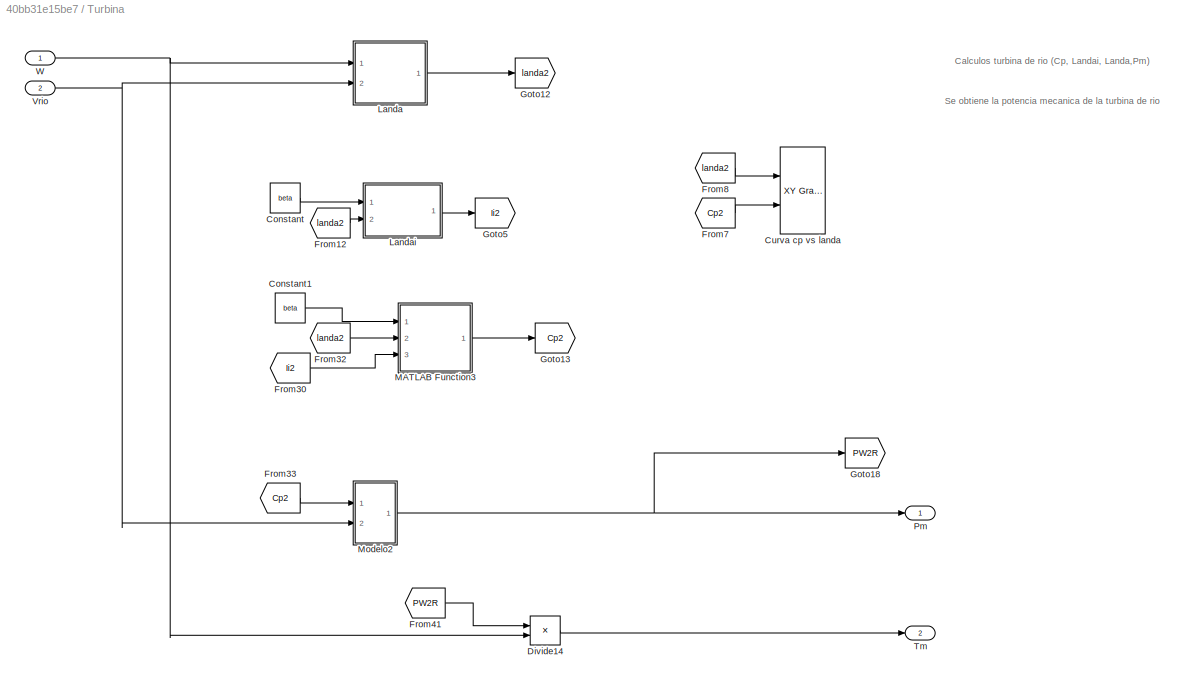
BLOCK [SubSystem] Turbina
  Ports = [2, 2]
  RequestExecContextInheritance = off
  Variant = off
BLOCK [Constant] Turbina/Constant
  Value = beta
BLOCK [Constant] Turbina/Constant1
  Value = beta
BLOCK [Reference] Turbina/Curva cp vs landa  REF=simulink/Sinks/XY Graph
  Commented = on
  Ports = [2]
  SourceBlock = simulink/Sinks/XY Graph
  SourceProductBaseCode = SL
  SourceProductName = Simulink
  SourceType = XY scope.
BLOCK [Product] Turbina/Divide14
  InputSameDT = off
  Inputs = */
  OutDataTypeStr = Inherit: Inherit via internal rule
  Ports = [2, 1]
  RndMeth = Floor
  SaturateOnIntegerOverflow = off
BLOCK [From] Turbina/From12
  GotoTag = landa2
BLOCK [From] Turbina/From30
  GotoTag = Ii2
BLOCK [From] Turbina/From32
  GotoTag = landa2
BLOCK [From] Turbina/From33
  GotoTag = Cp2
  TagVisibility = global
BLOCK [From] Turbina/From41
  GotoTag = PW2R
BLOCK [From] Turbina/From7
  Commented = on
  GotoTag = Cp2
BLOCK [From] Turbina/From8
  Commented = on
  GotoTag = landa2
BLOCK [Goto] Turbina/Goto12
  GotoTag = landa2
BLOCK [Goto] Turbina/Goto13
  GotoTag = Cp2
  TagVisibility = global
BLOCK [Goto] Turbina/Goto18
  GotoTag = PW2R
BLOCK [Goto] Turbina/Goto5
  GotoTag = Ii2
BLOCK [SubSystem] Turbina/Landa
  Ports = [2, 1]
  RequestExecContextInheritance = off
  Variant = off
BLOCK [Constant] Turbina/Landa/Constant
  Value = 0.001
BLOCK [Product] Turbina/Landa/Divide12
  InputSameDT = off
  Inputs = **
  OutDataTypeStr = Inherit: Inherit via internal rule
  Ports = [2, 1]
  RndMeth = Floor
  SaturateOnIntegerOverflow = off
BLOCK [Product] Turbina/Landa/Divide7
  InputSameDT = off
  Inputs = */
  OutDataTypeStr = Inherit: Inherit via internal rule
  Ports = [2, 1]
  RndMeth = Floor
  SaturateOnIntegerOverflow = off
BLOCK [Outport] Turbina/Landa/Landa
  IconDisplay = Port number
BLOCK [Scope] Turbina/Landa/Scope35
  NumInputPorts = 1
  Ports = [1]
  ScopeSpecificationString = Simulink.scopes.TimeScopeBlockCfg('CurrentConfiguration', extmgr.ConfigurationSet(extmgr.Configuration('Core','General UI',true,'FigureColor',[0.156862745098039 0.156862745098039 0.156862745098039]),extmgr.Configuration('Core','Source UI',true),extmgr.Configuration('Sources','WiredSimulink',true,'DataLoggingVariableName','ScopeData3','DataLoggingSaveFormat','StructureWithTime','DataLoggingDecimati...<+2726ch>
BLOCK [Scope] Turbina/Landa/Scope36
  NumInputPorts = 1
  Ports = [1]
  ScopeSpecificationString = Simulink.scopes.TimeScopeBlockCfg('CurrentConfiguration', extmgr.ConfigurationSet(extmgr.Configuration('Core','General UI',true,'FigureColor',[0.156862745098039 0.156862745098039 0.156862745098039]),extmgr.Configuration('Core','Source UI',true),extmgr.Configuration('Sources','WiredSimulink',true,'DataLoggingVariableName','ScopeData4','DataLoggingSaveFormat','StructureWithTime','DataLoggingDecimati...<+2712ch>
BLOCK [Scope] Turbina/Landa/Scope37
  NumInputPorts = 1
  Ports = [1]
  ScopeSpecificationString = Simulink.scopes.TimeScopeBlockCfg('CurrentConfiguration', extmgr.ConfigurationSet(extmgr.Configuration('Core','General UI',true,'FigureColor',[0.156862745098039 0.156862745098039 0.156862745098039]),extmgr.Configuration('Core','Source UI',true),extmgr.Configuration('Sources','WiredSimulink',true,'DataLoggingVariableName','ScopeData5','DataLoggingSaveFormat','StructureWithTime','DataLoggingDecimati...<+2730ch>
BLOCK [Scope] Turbina/Landa/Scope38
  NumInputPorts = 1
  Ports = [1]
  ScopeSpecificationString = Simulink.scopes.TimeScopeBlockCfg('CurrentConfiguration', extmgr.ConfigurationSet(extmgr.Configuration('Core','General UI',true,'FigureColor',[0.156862745098039 0.156862745098039 0.156862745098039]),extmgr.Configuration('Core','Source UI',true),extmgr.Configuration('Sources','WiredSimulink',true,'DataLoggingVariableName','ScopeData6','DataLoggingSaveFormat','StructureWithTime','DataLoggingDecimati...<+2712ch>
BLOCK [Sum] Turbina/Landa/Sum
  IconShape = round
  InputSameDT = off
  Inputs = |++
  OutDataTypeStr = Inherit: Inherit via internal rule
  Ports = [2, 1]
  SaturateOnIntegerOverflow = off
BLOCK [Inport] Turbina/Landa/Vrio
  IconDisplay = Port number
  Port = 2
BLOCK [Constant] Turbina/Landa/radio
  Value = r
BLOCK [Inport] Turbina/Landa/w
  IconDisplay = Port number
BLOCK [SubSystem] Turbina/Landai
  Ports = [2, 1]
  RequestExecContextInheritance = off
  Variant = off
BLOCK [Inport] Turbina/Landai/Beta
  IconDisplay = Port number
BLOCK [Inport] Turbina/Landai/Landa
  IconDisplay = Port number
  Port = 2
BLOCK [Outport] Turbina/Landai/Landai
  IconDisplay = Port number
BLOCK [SubSystem] Turbina/Landai/lamdai
  ErrorFcn = Stateflow.Translate.translate
  PermitHierarchicalResolution = ExplicitOnly
  Ports = [2, 1]
  RequestExecContextInheritance = off
  SFBlockType = MATLAB Function
  TreatAsAtomicUnit = on
  Variant = off
BLOCK [Demux] Turbina/Landai/lamdai/ Demux 
  Outputs = 1
  Ports = [1, 1]
BLOCK [S-Function] Turbina/Landai/lamdai/ SFunction 
  EnableBusSupport = on
  FunctionName = sf_sfun
  PortCounts = [2 2]
  Ports = [2, 2]
  SFcnIsStateOwnerBlock = off
  SFunctionDeploymentMode = off
  Tag = Stateflow S-Function MODELODETURBINADERIOV10 3
BLOCK [Terminator] Turbina/Landai/lamdai/ Terminator 
BLOCK [Outport] Turbina/Landai/lamdai/Ii
  IconDisplay = Port number
BLOCK [Inport] Turbina/Landai/lamdai/beta
  IconDisplay = Port number
BLOCK [Inport] Turbina/Landai/lamdai/landa
  IconDisplay = Port number
  Port = 2
BLOCK [SubSystem] Turbina/MATLAB Function3
  ErrorFcn = Stateflow.Translate.translate
  PermitHierarchicalResolution = ExplicitOnly
  Ports = [3, 1]
  RequestExecContextInheritance = off
  SFBlockType = MATLAB Function
  TreatAsAtomicUnit = on
  Variant = off
BLOCK [Demux] Turbina/MATLAB Function3/ Demux 
  Outputs = 1
  Ports = [1, 1]
BLOCK [S-Function] Turbina/MATLAB Function3/ SFunction 
  EnableBusSupport = on
  FunctionName = sf_sfun
  PortCounts = [3 2]
  Ports = [3, 2]
  SFcnIsStateOwnerBlock = off
  SFunctionDeploymentMode = off
  Tag = Stateflow S-Function MODELODETURBINADERIOV10 2
BLOCK [Terminator] Turbina/MATLAB Function3/ Terminator 
BLOCK [Inport] Turbina/MATLAB Function3/Ii
  IconDisplay = Port number
  Port = 3
BLOCK [Inport] Turbina/MATLAB Function3/beta
  IconDisplay = Port number
BLOCK [Inport] Turbina/MATLAB Function3/landa
  IconDisplay = Port number
  Port = 2
BLOCK [Outport] Turbina/MATLAB Function3/y
  IconDisplay = Port number
BLOCK [SubSystem] Turbina/Modelo2
  Ports = [2, 1]
  RequestExecContextInheritance = off
  Variant = off
BLOCK [Constant] Turbina/Modelo2/A1
  Value = A
BLOCK [Constant] Turbina/Modelo2/Constant4
  Value = 3
BLOCK [Inport] Turbina/Modelo2/Cp
  IconDisplay = Port number
BLOCK [Constant] Turbina/Modelo2/D1
  Value = den
BLOCK [Product] Turbina/Modelo2/Divide13
  InputSameDT = off
  Inputs = ****
  OutDataTypeStr = Inherit: Inherit via internal rule
  Ports = [4, 1]
BLOCK [Gain] Turbina/Modelo2/Gain11
  Gain = 0.5
  OutDataTypeStr = Inherit: Inherit via internal rule
  ParamDataTypeStr = Inherit: Inherit via internal rule
  SaturateOnIntegerOverflow = off
BLOCK [Math] Turbina/Modelo2/Math Function6
  Operator = pow
  Ports = [2, 1]
BLOCK [Outport] Turbina/Modelo2/Pm
  IconDisplay = Port number
BLOCK [Inport] Turbina/Modelo2/Vrio
  IconDisplay = Port number
  Port = 2
BLOCK [Outport] Turbina/Pm
  IconDisplay = Port number
BLOCK [Outport] Turbina/Tm
  IconDisplay = Port number
  Port = 2
BLOCK [Inport] Turbina/Vrio
  IconDisplay = Port number
  Port = 2
BLOCK [Inport] Turbina/W
  IconDisplay = Port number
BLOCK [Goto] velocidad
ANNOTATION (root): vatios(W)
ANNOTATION (root): Dc - Dc
ANNOTATION (root): Gen. Dc Motor
ANNOTATION (root): Inversor
ANNOTATION (root): Mod. Mecanico
ANNOTATION (root): Mod. Turbina rio
ANNOTATION (root): rad/s
ANNOTATION Gen. Dc: Calculo del par electrico con la corriente en la carga
ANNOTATION Gen. Dc: Se emplean parametro de un motor dc para 18.5Kw debido a que fueron con los que mejor trabajo
ANNOTATION Gen. Dc/Motor iman.: Se obtiene la tension del generador a partir de una velocidad angular
ANNOTATION Gen. Dc/Motor iman.: y una corriente retroalimentada del conversor dc-dc
ANNOTATION Mod. Mec.: Se obtiene la velocidad angular del eje de la turbina de rio
ANNOTATION Mod. Mec.: Sumatoria de fuerzas del eje mecánico
ANNOTATION Subsystem/Acondicionamiento: Se garantiza una entrada fija a 150, pero si la tension de entrada desciende se deja su valor original y se calcula con ello el ciclo Duty
ANNOTATION Subsystem3: Controladores de Voltaje
ANNOTATION Subsystem3: Desacople dinamica de voltaje
ANNOTATION Turbina: Calculos turbina de rio (Cp, Landai, Landa,Pm)
ANNOTATION Turbina: Se obtiene la potencia mecanica de la turbina de rio
NET Constant5:1 -> Scope8:1, velocidad:1
LINE Divide:1 -> Scope9:1
LINE From11:1 -> Turbina:2
NET From12:1 -> Gen. Dc:2, Scope4:1
LINE From17:1 -> Gen. Dc:1
NET From18:1 -> Display2:1, Mod. Mec.:2, Scope:2
LINE From19:1 -> Subsystem3:1
LINE From1:1 -> Divide:1
LINE From2:1 -> Divide:2
NET From3:1 -> Display5:1, Mod. Mec.:1, Scope:1
LINE From4:1 -> Turbina:1
LINE From5:1 -> Scope3:1
LINE From:1 -> Subsystem:1
NET Gen. Dc/Ic:1 -> Gen. Dc/Motor iman.:1, Gen. Dc/Par elec.:1
LINE Gen. Dc/Motor iman./Constant1:1 -> Gen. Dc/Motor iman./Divide6:1
LINE Gen. Dc/Motor iman./Constant2:1 -> Gen. Dc/Motor iman./Divide7:1
LINE Gen. Dc/Motor iman./Divide6:1 -> Gen. Dc/Motor iman./Sum1:1
LINE Gen. Dc/Motor iman./Divide7:1 -> Gen. Dc/Motor iman./Sum1:2
LINE Gen. Dc/Motor iman./I:1 -> Gen. Dc/Motor iman./Divide7:2
LINE Gen. Dc/Motor iman./Sum1:1 -> Gen. Dc/Motor iman./Out1:1
LINE Gen. Dc/Motor iman./W:1 -> Gen. Dc/Motor iman./Divide6:2
LINE Gen. Dc/Motor iman.:1 -> Gen. Dc/Vout:1
LINE Gen. Dc/Par elec./Constant2:1 -> Gen. Dc/Par elec./Divide2:2
LINE Gen. Dc/Par elec./Divide2:1 -> Gen. Dc/Par elec./Te:1
LINE Gen. Dc/Par elec./Ic:1 -> Gen. Dc/Par elec./Divide2:1
LINE Gen. Dc/Par elec.:1 -> Gen. Dc/Te:1
LINE Gen. Dc/W:1 -> Gen. Dc/Motor iman.:2
LINE Gen. Dc:1 -> Goto23:1
NET Gen. Dc:2 -> Display:1, Goto3:1, Scope6:1
LINE Mod. Mec./Constant3:1 -> Mod. Mec./Divide2:2
LINE Mod. Mec./Divide2:1 -> Mod. Mec./Sum4:4
LINE Mod. Mec./Divide9:1 -> Mod. Mec./Integrator6:1
NET Mod. Mec./Gain:1 -> Mod. Mec./Divide2:1, Mod. Mec./Oeficiente de friccion:1, Mod. Mec./Scope2:1, Mod. Mec./W:1
NET Mod. Mec./Integrator6:1 -> Mod. Mec./Gain:1, Mod. Mec./Scope:1
LINE Mod. Mec./Oeficiente de friccion:1 -> Mod. Mec./Sum4:3
LINE Mod. Mec./Sum4:1 -> Mod. Mec./Divide9:1
NET Mod. Mec./Te:1 -> Mod. Mec./Scope1:2, Mod. Mec./Sum4:2
NET Mod. Mec./Tm:1 -> Mod. Mec./Scope1:1, Mod. Mec./Sum4:1
LINE Mod. Mec./inercia J:1 -> Mod. Mec./Divide9:2
NET Mod. Mec.:1 -> Display3:1, Goto1:1, Scope7:1
LINE Subsystem/Acondicionamiento/Constant1:1 -> Subsystem/Acondicionamiento/Divide1:1
LINE Subsystem/Acondicionamiento/Divide1:1 -> Subsystem/Acondicionamiento/Saturation:1
LINE Subsystem/Acondicionamiento/Divide:1 -> Subsystem/Acondicionamiento/150:1
LINE Subsystem/Acondicionamiento/Saturation:1 -> Subsystem/Acondicionamiento/Divide:2
NET Subsystem/Acondicionamiento/Vin:1 -> Subsystem/Acondicionamiento/Divide1:2, Subsystem/Acondicionamiento/Divide:1
LINE Subsystem/Acondicionamiento:1 -> Subsystem/Transfer Fcn2:1
LINE Subsystem/Constant:1 -> Subsystem/Sum2:3
LINE Subsystem/Divide3:1 -> Subsystem/Scope5:1
NET Subsystem/Divide:1 -> Subsystem/Divide3:2, Subsystem/Goto:1, Subsystem/Iout:1, Subsystem/Scope:1, Subsystem/Sum:2
LINE Subsystem/From4:1 -> Subsystem/Divide:1
LINE Subsystem/PID Controller:1 -> Subsystem/Transfer Fcn3:1
LINE Subsystem/Signal Builder:1 -> Subsystem/Sum:1
NET Subsystem/Sum2:1 -> Subsystem/Divide3:1, Subsystem/Divide:2, Subsystem/Scope2:1, Subsystem/Vout:1
NET Subsystem/Sum:1 -> Subsystem/PID Controller:1, Subsystem/Scope6:1
NET Subsystem/Transfer Fcn2:1 -> Subsystem/Scope3:1, Subsystem/Sum2:1
LINE Subsystem/Transfer Fcn3:1 -> Subsystem/Sum2:2
LINE Subsystem/Vin:1 -> Subsystem/Acondicionamiento:1
LINE Subsystem3/ABC2ab1:1 -> Subsystem3/Sum:2
LINE Subsystem3/ABC2ab2:1 -> Subsystem3/Sum1:1
LINE Subsystem3/ABC2ab3:1 -> Subsystem3/Vrms:1
LINE Subsystem3/ABC2ab4:1 -> Subsystem3/Goto8:1
LINE Subsystem3/Constant:1 -> Subsystem3/Divide1:3
LINE Subsystem3/Ctr Id/Add1:1 -> Subsystem3/Ctr Id/Ctr:1
NET Subsystem3/Ctr Id/Add:1 -> Subsystem3/Ctr Id/Derivative Divisor1:1, Subsystem3/Ctr Id/Derivative Divisor2:1
LINE Subsystem3/Ctr Id/Derivative Divisor1:1 -> Subsystem3/Ctr Id/Integrator:1
LINE Subsystem3/Ctr Id/Derivative Divisor2:1 -> Subsystem3/Ctr Id/Add1:1
LINE Subsystem3/Ctr Id/Derivative Divisor:1 -> Subsystem3/Ctr Id/Add:2
LINE Subsystem3/Ctr Id/If:1 -> Subsystem3/Ctr Id/Derivative Divisor:1
LINE Subsystem3/Ctr Id/Integrator:1 -> Subsystem3/Ctr Id/Add1:2
LINE Subsystem3/Ctr Id/Iref:1 -> Subsystem3/Ctr Id/Add:1
NET Subsystem3/Ctr Id:1 -> Subsystem3/Desacople dinamica de corriente:2, Subsystem3/Mux4:1
LINE Subsystem3/Ctr Iq/Add1:1 -> Subsystem3/Ctr Iq/Ctr:1
NET Subsystem3/Ctr Iq/Add:1 -> Subsystem3/Ctr Iq/Derivative Divisor1:1, Subsystem3/Ctr Iq/Derivative Divisor2:1
LINE Subsystem3/Ctr Iq/Derivative Divisor1:1 -> Subsystem3/Ctr Iq/Integrator:1
LINE Subsystem3/Ctr Iq/Derivative Divisor2:1 -> Subsystem3/Ctr Iq/Add1:1
LINE Subsystem3/Ctr Iq/Derivative Divisor:1 -> Subsystem3/Ctr Iq/Add:2
LINE Subsystem3/Ctr Iq/If:1 -> Subsystem3/Ctr Iq/Derivative Divisor:1
LINE Subsystem3/Ctr Iq/Integrator:1 -> Subsystem3/Ctr Iq/Add1:2
LINE Subsystem3/Ctr Iq/Iref:1 -> Subsystem3/Ctr Iq/Add:1
NET Subsystem3/Ctr Iq:1 -> Subsystem3/Desacople dinamica de corriente:6, Subsystem3/Mux4:2
LINE Subsystem3/Ctr Vod/Add1:1 -> Subsystem3/Ctr Vod/Ctr:1
NET Subsystem3/Ctr Vod/Add:1 -> Subsystem3/Ctr Vod/Derivative Divisor1:1, Subsystem3/Ctr Vod/Derivative Divisor2:1
LINE Subsystem3/Ctr Vod/Derivative Divisor1:1 -> Subsystem3/Ctr Vod/Integrator:1
LINE Subsystem3/Ctr Vod/Derivative Divisor2:1 -> Subsystem3/Ctr Vod/Add1:1
LINE Subsystem3/Ctr Vod/Derivative Divisor:1 -> Subsystem3/Ctr Vod/Add:2
LINE Subsystem3/Ctr Vod/Integrator:1 -> Subsystem3/Ctr Vod/Add1:2
LINE Subsystem3/Ctr Vod/VoF:1 -> Subsystem3/Ctr Vod/Derivative Divisor:1
LINE Subsystem3/Ctr Vod/VoRef:1 -> Subsystem3/Ctr Vod/Add:1
LINE Subsystem3/Ctr Vod:1 -> Subsystem3/Sum:1
LINE Subsystem3/Ctr Voq/Add1:1 -> Subsystem3/Ctr Voq/Ctr:1
NET Subsystem3/Ctr Voq/Add:1 -> Subsystem3/Ctr Voq/Derivative Divisor1:1, Subsystem3/Ctr Voq/Derivative Divisor2:1
LINE Subsystem3/Ctr Voq/Derivative Divisor1:1 -> Subsystem3/Ctr Voq/Integrator:1
LINE Subsystem3/Ctr Voq/Derivative Divisor2:1 -> Subsystem3/Ctr Voq/Add1:1
LINE Subsystem3/Ctr Voq/Derivative Divisor:1 -> Subsystem3/Ctr Voq/Add:2
LINE Subsystem3/Ctr Voq/Integrator:1 -> Subsystem3/Ctr Voq/Add1:2
LINE Subsystem3/Ctr Voq/VoF:1 -> Subsystem3/Ctr Voq/Derivative Divisor:1
LINE Subsystem3/Ctr Voq/VoRef:1 -> Subsystem3/Ctr Voq/Add:1
LINE Subsystem3/Ctr Voq:1 -> Subsystem3/Sum1:2
LINE Subsystem3/Demux:1 -> Subsystem3/Subsystem:1
LINE Subsystem3/Demux:2 -> Subsystem3/Subsystem1:1
LINE Subsystem3/Demux:3 -> Subsystem3/Subsystem2:1
LINE Subsystem3/Desacople dinamica de corriente/ABC2ab3:1 -> Subsystem3/Desacople dinamica de corriente/Sum3:1
LINE Subsystem3/Desacople dinamica de corriente/ABC2ab4:1 -> Subsystem3/Desacople dinamica de corriente/Sum2:2
LINE Subsystem3/Desacople dinamica de corriente/ABC2ab7:1 -> Subsystem3/Desacople dinamica de corriente/Saturation:1
LINE Subsystem3/Desacople dinamica de corriente/ABC2ab8:1 -> Subsystem3/Desacople dinamica de corriente/Saturation1:1
LINE Subsystem3/Desacople dinamica de corriente/Iinvd:1 -> Subsystem3/Desacople dinamica de corriente/Product2:2
LINE Subsystem3/Desacople dinamica de corriente/Iinvq:1 -> Subsystem3/Desacople dinamica de corriente/Product4:1
LINE Subsystem3/Desacople dinamica de corriente/Product2:1 -> Subsystem3/Desacople dinamica de corriente/ABC2ab3:1
LINE Subsystem3/Desacople dinamica de corriente/Product4:1 -> Subsystem3/Desacople dinamica de corriente/ABC2ab4:1
LINE Subsystem3/Desacople dinamica de corriente/Saturation1:1 -> Subsystem3/Desacople dinamica de corriente/Mq:1
LINE Subsystem3/Desacople dinamica de corriente/Saturation:1 -> Subsystem3/Desacople dinamica de corriente/Md:1
LINE Subsystem3/Desacople dinamica de corriente/Sum2:1 -> Subsystem3/Desacople dinamica de corriente/Sum4:2
LINE Subsystem3/Desacople dinamica de corriente/Sum3:1 -> Subsystem3/Desacople dinamica de corriente/Sum5:1
LINE Subsystem3/Desacople dinamica de corriente/Sum4:1 -> Subsystem3/Desacople dinamica de corriente/ABC2ab7:1
LINE Subsystem3/Desacople dinamica de corriente/Sum5:1 -> Subsystem3/Desacople dinamica de corriente/ABC2ab8:1
LINE Subsystem3/Desacople dinamica de corriente/Ud:1 -> Subsystem3/Desacople dinamica de corriente/Sum2:1
LINE Subsystem3/Desacople dinamica de corriente/Uq:1 -> Subsystem3/Desacople dinamica de corriente/Sum3:2
LINE Subsystem3/Desacople dinamica de corriente/Vod:1 -> Subsystem3/Desacople dinamica de corriente/Sum4:1
LINE Subsystem3/Desacople dinamica de corriente/Voq:1 -> Subsystem3/Desacople dinamica de corriente/Sum5:2
NET Subsystem3/Desacople dinamica de corriente/Ws:1 -> Subsystem3/Desacople dinamica de corriente/Product2:1, Subsystem3/Desacople dinamica de corriente/Product4:2
NET Subsystem3/Desacople dinamica de corriente:1 -> Subsystem3/Goto6:1, Subsystem3/Mux5:1
NET Subsystem3/Desacople dinamica de corriente:2 -> Subsystem3/Goto5:1, Subsystem3/Mux5:2
NET Subsystem3/Divide1:1 -> Subsystem3/Display1:1, Subsystem3/Scope4:1
NET Subsystem3/Divide:1 -> Subsystem3/Demux:1, Subsystem3/Scope9:1
NET Subsystem3/From10:1 -> Subsystem3/Ctr Id:2, Subsystem3/Mux9:2
LINE Subsystem3/From11:1 -> Subsystem3/Divide1:2
LINE Subsystem3/From13:1 -> Subsystem3/Product3:1
LINE Subsystem3/From14:1 -> Subsystem3/Product1:2
NET Subsystem3/From15:1 -> Subsystem3/Ctr Vod:2, Subsystem3/Mux6:2
NET Subsystem3/From16:1 -> Subsystem3/Ctr Voq:2, Subsystem3/Mux8:2
LINE Subsystem3/From1:1 -> Subsystem3/Desacople dinamica de corriente:3
LINE Subsystem3/From21:1 -> Subsystem3/Mux13:1
LINE Subsystem3/From22:1 -> Subsystem3/Mux13:2
LINE Subsystem3/From23:1 -> Subsystem3/Mux13:3
LINE Subsystem3/From24:1 -> Subsystem3/abc2dq1:2
LINE Subsystem3/From25:1 -> Subsystem3/abc2dq1:1
LINE Subsystem3/From26:1 -> Subsystem3/abc2dq2:2
LINE Subsystem3/From27:1 -> Subsystem3/abc2dq2:1
NET Subsystem3/From28:1 -> Subsystem3/Scope:1, Subsystem3/dq0_to_abc Transformation:2
LINE Subsystem3/From29:1 -> Subsystem3/Mux14:1
LINE Subsystem3/From2:1 -> Subsystem3/Desacople dinamica de corriente:5
LINE Subsystem3/From30:1 -> Subsystem3/Mux14:2
LINE Subsystem3/From31:1 -> Subsystem3/Divide:1
LINE Subsystem3/From32:1 -> Subsystem3/Mux12:1
LINE Subsystem3/From33:1 -> Subsystem3/Mux2:1
LINE Subsystem3/From34:1 -> Subsystem3/Mux2:2
LINE Subsystem3/From38:1 -> Subsystem3/Mux11:1
NET Subsystem3/From39:1 -> Subsystem3/ABC2ab3:1, Subsystem3/Mux16:1
LINE Subsystem3/From3:1 -> Subsystem3/Power (3ph, Phasor):1
LINE Subsystem3/From40:1 -> Subsystem3/Mux16:2
LINE Subsystem3/From4:1 -> Subsystem3/Divide1:1
NET Subsystem3/From5:1 -> Subsystem3/Product1:1, Subsystem3/Product3:2
LINE Subsystem3/From6:1 -> Subsystem3/Desacople dinamica de corriente:7
LINE Subsystem3/From7:1 -> Subsystem3/Desacople dinamica de corriente:4
LINE Subsystem3/From8:1 -> Subsystem3/Desacople dinamica de corriente:1
NET Subsystem3/From9:1 -> Subsystem3/Ctr Iq:2, Subsystem3/Mux1:2
LINE Subsystem3/From:1 -> Subsystem3/Power (3ph, Phasor):2
LINE Subsystem3/Memory:1 -> Subsystem3/Goto1:1
NET Subsystem3/Mux10:1 -> Subsystem3/Goto14:1, Subsystem3/Voabc :1
LINE Subsystem3/Mux11:1 -> Subsystem3/Vabc:1
LINE Subsystem3/Mux12:1 -> Subsystem3/Iabc:1
LINE Subsystem3/Mux13:1 -> Subsystem3/Goto15:1
LINE Subsystem3/Mux14:1 -> Subsystem3/dq0_to_abc Transformation:1
LINE Subsystem3/Mux16:1 -> Subsystem3/Mux11:2
LINE Subsystem3/Mux1:1 -> Subsystem3/Iq:1
LINE Subsystem3/Mux2:1 -> Subsystem3/Mux12:2
LINE Subsystem3/Mux4:1 -> Subsystem3/Ictr:1
LINE Subsystem3/Mux5:1 -> Subsystem3/mdq:1
LINE Subsystem3/Mux6:1 -> Subsystem3/Vd:1
LINE Subsystem3/Mux8:1 -> Subsystem3/Vq:1
LINE Subsystem3/Mux9:1 -> Subsystem3/Id:1
NET Subsystem3/Power (3ph, Phasor):1 -> Subsystem3/Display:1, Subsystem3/Memory:1, Subsystem3/Pout:1, Subsystem3/Scope1:1
LINE Subsystem3/Power (3ph, Phasor):2 -> Subsystem3/Goto2:1
LINE Subsystem3/Product1:1 -> Subsystem3/ABC2ab2:1
LINE Subsystem3/Product3:1 -> Subsystem3/ABC2ab1:1
LINE Subsystem3/Ref Voltaje1:1 -> Subsystem3/ABC2ab4:1
LINE Subsystem3/Ref Voltaje:1 -> Subsystem3/Transfer Fcn:1
LINE Subsystem3/Ref Voq1:1 -> Subsystem3/Mux14:3
NET Subsystem3/Ref Voq:1 -> Subsystem3/Ctr Voq:1, Subsystem3/Mux8:1
NET Subsystem3/Sin_Cos_Gen/Clock1:1 -> Subsystem3/Sin_Cos_Gen/Product:1, Subsystem3/Sin_Cos_Gen/Scope2:1
LINE Subsystem3/Sin_Cos_Gen/From28:1 -> Subsystem3/Sin_Cos_Gen/Product:2
LINE Subsystem3/Sin_Cos_Gen/Mux14:1 -> Subsystem3/Sin_Cos_Gen/SC:1
NET Subsystem3/Sin_Cos_Gen/Product:1 -> Subsystem3/Sin_Cos_Gen/Trigonometric Function1:1, Subsystem3/Sin_Cos_Gen/Trigonometric Function:1
NET Subsystem3/Sin_Cos_Gen/Trigonometric Function1:1 -> Subsystem3/Sin_Cos_Gen/Mux14:2, Subsystem3/Sin_Cos_Gen/Scope1:1
NET Subsystem3/Sin_Cos_Gen/Trigonometric Function:1 -> Subsystem3/Sin_Cos_Gen/Mux14:1, Subsystem3/Sin_Cos_Gen/Scope:1
LINE Subsystem3/Sin_Cos_Gen:1 -> Subsystem3/Goto10:1
LINE Subsystem3/Subsystem/Gain1:1 -> Subsystem3/Subsystem/Switch:1
NET Subsystem3/Subsystem/Gain3:1 -> Subsystem3/Subsystem/Iout:1, Subsystem3/Subsystem/Transfer Fcn3:1
LINE Subsystem3/Subsystem/Signal Builder:1 -> Subsystem3/Subsystem/Switch:2
NET Subsystem3/Subsystem/Sum2:1 -> Subsystem3/Subsystem/Gain1:1, Subsystem3/Subsystem/Gain3:1, Subsystem3/Subsystem/Vout:1
LINE Subsystem3/Subsystem/Transfer Fcn2:1 -> Subsystem3/Subsystem/Sum2:1
LINE Subsystem3/Subsystem/Transfer Fcn3:1 -> Subsystem3/Subsystem/Sum2:2
LINE Subsystem3/Subsystem/Vin:1 -> Subsystem3/Subsystem/Transfer Fcn2:1
LINE Subsystem3/Subsystem1/Gain1:1 -> Subsystem3/Subsystem1/Switch:1
NET Subsystem3/Subsystem1/Gain3:1 -> Subsystem3/Subsystem1/Iout:1, Subsystem3/Subsystem1/Transfer Fcn3:1
LINE Subsystem3/Subsystem1/Signal Builder:1 -> Subsystem3/Subsystem1/Switch:2
NET Subsystem3/Subsystem1/Sum2:1 -> Subsystem3/Subsystem1/Gain1:1, Subsystem3/Subsystem1/Gain3:1, Subsystem3/Subsystem1/Vout:1
LINE Subsystem3/Subsystem1/Transfer Fcn2:1 -> Subsystem3/Subsystem1/Sum2:1
LINE Subsystem3/Subsystem1/Transfer Fcn3:1 -> Subsystem3/Subsystem1/Sum2:2
LINE Subsystem3/Subsystem1/Vin:1 -> Subsystem3/Subsystem1/Transfer Fcn2:1
LINE Subsystem3/Subsystem1:1 -> Subsystem3/Mux10:2
NET Subsystem3/Subsystem1:2 -> Subsystem3/Goto12:1, Subsystem3/Scope2:2
LINE Subsystem3/Subsystem2/Gain1:1 -> Subsystem3/Subsystem2/Switch:1
NET Subsystem3/Subsystem2/Gain3:1 -> Subsystem3/Subsystem2/Iout:1, Subsystem3/Subsystem2/Transfer Fcn3:1
LINE Subsystem3/Subsystem2/Signal Builder:1 -> Subsystem3/Subsystem2/Switch:2
NET Subsystem3/Subsystem2/Sum2:1 -> Subsystem3/Subsystem2/Gain1:1, Subsystem3/Subsystem2/Gain3:1, Subsystem3/Subsystem2/Vout:1
LINE Subsystem3/Subsystem2/Transfer Fcn2:1 -> Subsystem3/Subsystem2/Sum2:1
LINE Subsystem3/Subsystem2/Transfer Fcn3:1 -> Subsystem3/Subsystem2/Sum2:2
LINE Subsystem3/Subsystem2/Vin:1 -> Subsystem3/Subsystem2/Transfer Fcn2:1
LINE Subsystem3/Subsystem2:1 -> Subsystem3/Mux10:3
NET Subsystem3/Subsystem2:2 -> Subsystem3/Goto13:1, Subsystem3/Scope2:3
LINE Subsystem3/Subsystem:1 -> Subsystem3/Mux10:1
NET Subsystem3/Subsystem:2 -> Subsystem3/Goto11:1, Subsystem3/Scope2:1
NET Subsystem3/Sum1:1 -> Subsystem3/Ctr Iq:1, Subsystem3/Mux1:1
NET Subsystem3/Sum:1 -> Subsystem3/Ctr Id:1, Subsystem3/Mux9:1, Subsystem3/Scope3:1
NET Subsystem3/Transfer Fcn:1 -> Subsystem3/Ctr Vod:1, Subsystem3/Mux6:1
LINE Subsystem3/Vin:1 -> Subsystem3/Divide:2
LINE Subsystem3/abc2dq1/Demux2:1 -> Subsystem3/abc2dq1/d:1
LINE Subsystem3/abc2dq1/Demux2:2 -> Subsystem3/abc2dq1/q:1
LINE Subsystem3/abc2dq1/Demux2:3 -> Subsystem3/abc2dq1/Terminator:1
LINE Subsystem3/abc2dq1/abc:1 -> Subsystem3/abc2dq1/abc_to_dq0 Transformation:1
LINE Subsystem3/abc2dq1/abc_to_dq0 Transformation:1 -> Subsystem3/abc2dq1/Demux2:1
LINE Subsystem3/abc2dq1/sin cos:1 -> Subsystem3/abc2dq1/abc_to_dq0 Transformation:2
LINE Subsystem3/abc2dq1:1 -> Subsystem3/Goto4:1
LINE Subsystem3/abc2dq1:2 -> Subsystem3/Goto16:1
LINE Subsystem3/abc2dq2/Demux2:1 -> Subsystem3/abc2dq2/d:1
LINE Subsystem3/abc2dq2/Demux2:2 -> Subsystem3/abc2dq2/q:1
LINE Subsystem3/abc2dq2/Demux2:3 -> Subsystem3/abc2dq2/Terminator:1
LINE Subsystem3/abc2dq2/abc:1 -> Subsystem3/abc2dq2/abc_to_dq0 Transformation:1
LINE Subsystem3/abc2dq2/abc_to_dq0 Transformation:1 -> Subsystem3/abc2dq2/Demux2:1
LINE Subsystem3/abc2dq2/sin cos:1 -> Subsystem3/abc2dq2/abc_to_dq0 Transformation:2
LINE Subsystem3/abc2dq2:1 -> Subsystem3/Goto17:1
LINE Subsystem3/abc2dq2:2 -> Subsystem3/Goto18:1
NET Subsystem3/dq0_to_abc Transformation:1 -> Subsystem3/Goto21:1, Subsystem3/Vabc1:1
LINE Subsystem3:1 -> Scope1:1
NET Subsystem3:2 -> Display1:1, Goto5:1, Scope2:1
LINE Subsystem:1 -> Goto9:1
LINE Subsystem:2 -> Goto:1
LINE Turbina/Constant1:1 -> Turbina/MATLAB Function3:1
LINE Turbina/Constant:1 -> Turbina/Landai:1
LINE Turbina/Divide14:1 -> Turbina/Tm:1
LINE Turbina/From12:1 -> Turbina/Landai:2
LINE Turbina/From30:1 -> Turbina/MATLAB Function3:3
LINE Turbina/From32:1 -> Turbina/MATLAB Function3:2
LINE Turbina/From33:1 -> Turbina/Modelo2:1
LINE Turbina/From41:1 -> Turbina/Divide14:1
LINE Turbina/From7:1 -> Turbina/Curva cp vs landa:2
LINE Turbina/From8:1 -> Turbina/Curva cp vs landa:1
LINE Turbina/Landa/Constant:1 -> Turbina/Landa/Sum:2
NET Turbina/Landa/Divide12:1 -> Turbina/Landa/Divide7:1, Turbina/Landa/Scope37:1
LINE Turbina/Landa/Divide7:1 -> Turbina/Landa/Landa:1
NET Turbina/Landa/Sum:1 -> Turbina/Landa/Divide7:2, Turbina/Landa/Scope38:1
LINE Turbina/Landa/Vrio:1 -> Turbina/Landa/Sum:1
NET Turbina/Landa/radio:1 -> Turbina/Landa/Divide12:2, Turbina/Landa/Scope36:1
NET Turbina/Landa/w:1 -> Turbina/Landa/Divide12:1, Turbina/Landa/Scope35:1
LINE Turbina/Landa:1 -> Turbina/Goto12:1
LINE Turbina/Landai/Beta:1 -> Turbina/Landai/lamdai:1
LINE Turbina/Landai/Landa:1 -> Turbina/Landai/lamdai:2
LINE Turbina/Landai/lamdai:1 -> Turbina/Landai/Landai:1
LINE Turbina/Landai:1 -> Turbina/Goto5:1
LINE Turbina/MATLAB Function3:1 -> Turbina/Goto13:1
LINE Turbina/Modelo2/A1:1 -> Turbina/Modelo2/Divide13:2
LINE Turbina/Modelo2/Constant4:1 -> Turbina/Modelo2/Math Function6:2
LINE Turbina/Modelo2/Cp:1 -> Turbina/Modelo2/Divide13:1
LINE Turbina/Modelo2/D1:1 -> Turbina/Modelo2/Divide13:3
LINE Turbina/Modelo2/Divide13:1 -> Turbina/Modelo2/Gain11:1
LINE Turbina/Modelo2/Gain11:1 -> Turbina/Modelo2/Pm:1
LINE Turbina/Modelo2/Math Function6:1 -> Turbina/Modelo2/Divide13:4
LINE Turbina/Modelo2/Vrio:1 -> Turbina/Modelo2/Math Function6:1
NET Turbina/Modelo2:1 -> Turbina/Goto18:1, Turbina/Pm:1
NET Turbina/Vrio:1 -> Turbina/Landa:2, Turbina/Modelo2:2
NET Turbina/W:1 -> Turbina/Divide14:2, Turbina/Landa:1
NET Turbina:1 -> Display4:1, Goto4:1, Scope5:1
LINE Turbina:2 -> Goto2:1
note: NET lines group one-source signal fan-out (src -> all destinations, sorted); 1:1 wires keep LINE
CHART Turbina/MATLAB Function3 states=1 transitions=1
  STATE_LABEL 'eML_blk_kernel()'
  STATE_LABEL 'SCRIPT:\nfunction y = fcn(beta, landa,Ii)\nw=0.5176; \nw1=116/Ii;\n w2=0.4*beta;\n w3=exp(-21/Ii);\n \n cp=w*(w1-w2-5)*w3+0.0068*landa;\n \n \n \n \n \ny=cp;\n \n '
CHART Turbina/Landai/lamdai states=1 transitions=1
  STATE_LABEL 'eML_blk_kernel()'
  STATE_LABEL 'SCRIPT:\nfunction Ii = fcn(beta,landa)\n\n\nIii=(1/((landa+(0.08*beta))))-((0.035)/((beta^3)+1));\nIi=1/Iii;'
